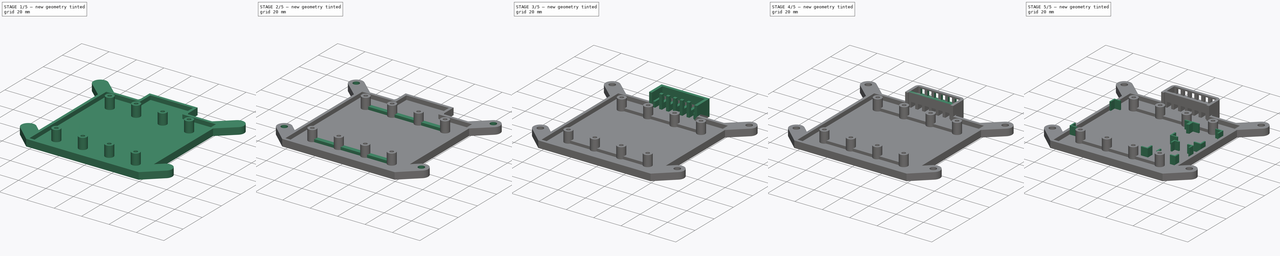
[diagram: build sequence overview — one tinted view per stage of 5, left to right]
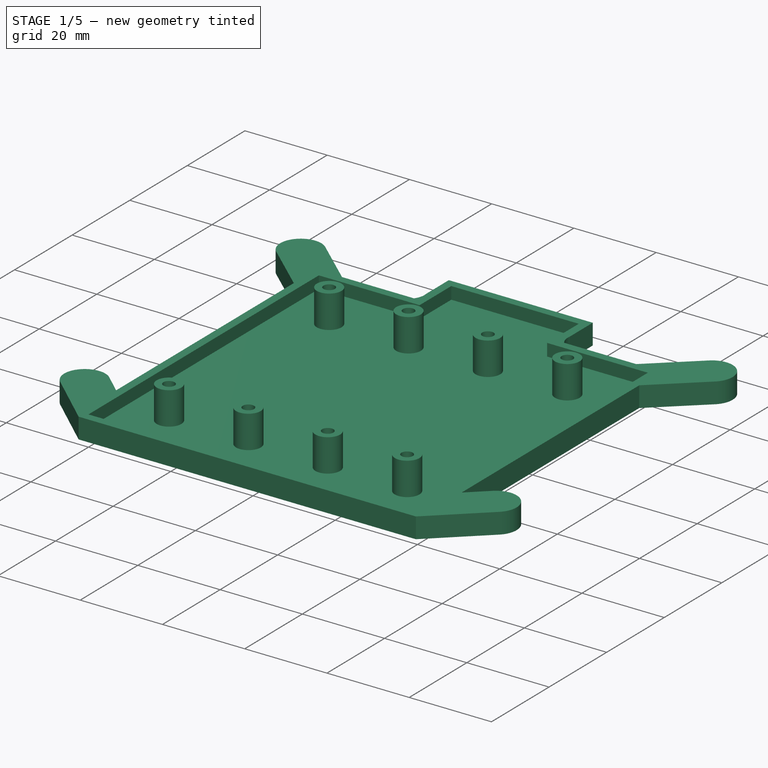
[diagram: stage 1 of 5 — iso view after this stage's code; geometry added in this stage tinted green]
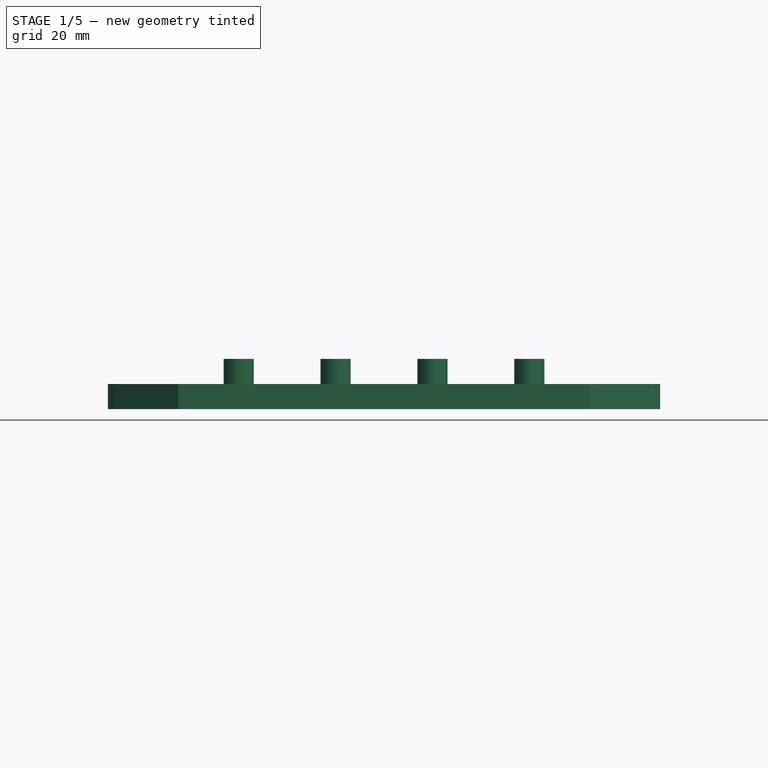
[diagram: stage 1 of 5 — front view after this stage's code; geometry added in this stage tinted green]
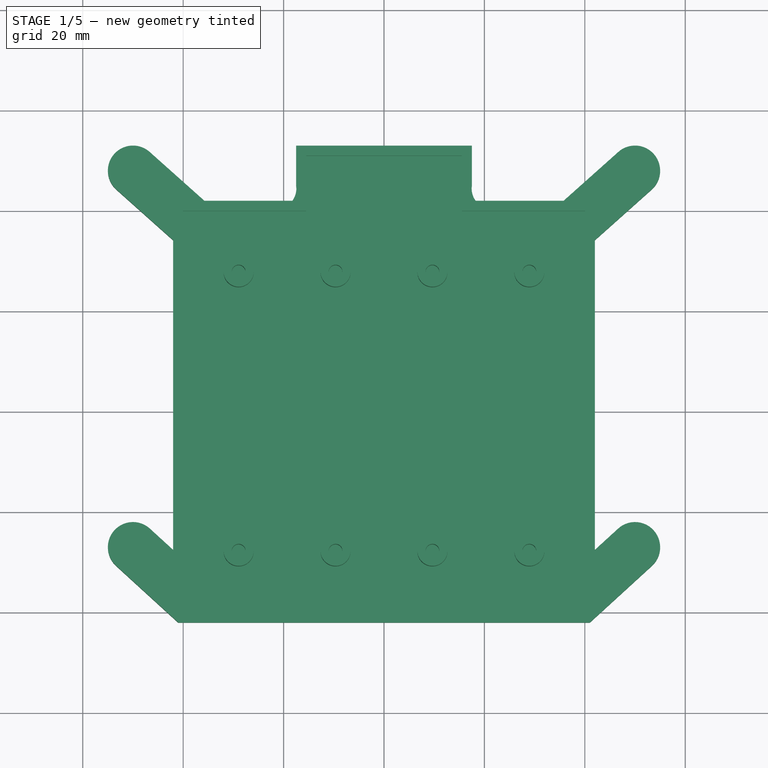
[diagram: stage 1 of 5 — top view after this stage's code; geometry added in this stage tinted green]
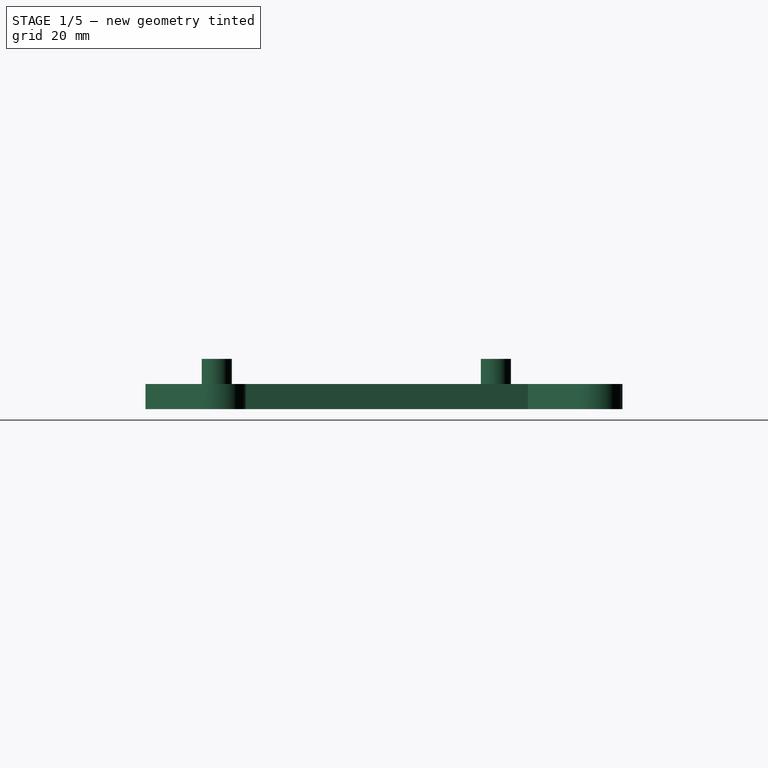
[diagram: stage 1 of 5 — right view after this stage's code; geometry added in this stage tinted green]
FCSTD DOCUMENT  (FreeCAD 1.1R44227 +322 (Git))
Label: foundation_v2
License: All rights reserved
LicenseURL: https://en.wikipedia.org/wiki/All_rights_reserved
objects: Sketcher::SketchObject×14, PartDesign::Pad×11, PartDesign::Pocket×3, PartDesign::Fillet×1, PartDesign::Body×1, App::Point×1
note: 74 computed .brp shape members not serialized (recipe doc carries the construction recipe); baked Part::Feature solids carry a one-line shape summary decoded from their .brp

FEATURE [Sketcher::SketchObject] Sketch111
  ArcFitTolerance = 0
  AttachmentSupport = -> [XY_Plane013]
  ExternalTypes = [0]
  FullyConstrained = true
  MakeInternals = false
  MapMode = 5
  sketch-geometry (36):
    g0: LineSegment [constr] StartX=-40 StartY=40 StartZ=0 EndX=40 EndY=40 EndZ=0
    g1: LineSegment StartX=-40 StartY=40 StartZ=0 EndX=-40 EndY=-40 EndZ=0
    g2: LineSegment StartX=-40 StartY=-40 StartZ=0 EndX=40 EndY=-40 EndZ=0
    g3: LineSegment StartX=40 StartY=40 StartZ=0 EndX=40 EndY=-40 EndZ=0
    g4: LineSegment [constr] StartX=-35.7645 StartY=42 StartZ=0 EndX=35.7645 EndY=42 EndZ=0
    g5: LineSegment StartX=42 StartY=34.1618 StartZ=0 EndX=42 EndY=-27.5382 EndZ=0
    g6: LineSegment StartX=41 StartY=-42 StartZ=0 EndX=-41 EndY=-42 EndZ=0
    g7: LineSegment StartX=-42 StartY=-27.5382 StartZ=0 EndX=-42 EndY=34.1618 EndZ=0
    g8: GeomPoint [constr] X=50 Y=48 Z=0
    g9: GeomPoint [constr] X=-50 Y=48 Z=0
    g10: GeomPoint [constr] X=-50 Y=-27 Z=0
    g11: GeomPoint [constr] X=50 Y=-27 Z=0
    g12: ArcOfCircle CenterX=50 CenterY=48 CenterZ=0 NormalX=0 NormalY=0 NormalZ=1 AngleXU=0 Radius=5 StartAngle=5.44087 EndAngle=8.58246
    g13: ArcOfCircle CenterX=-50 CenterY=48 CenterZ=0 NormalX=0 NormalY=0 NormalZ=1 AngleXU=0 Radius=5 StartAngle=0.842315 EndAngle=3.98391
    g14: ArcOfCircle CenterX=-50 CenterY=-27 CenterZ=0 NormalX=0 NormalY=0 NormalZ=1 AngleXU=0 Radius=5 StartAngle=0.830293 EndAngle=3.97189
    g15: ArcOfCircle CenterX=50 CenterY=-27 CenterZ=0 NormalX=0 NormalY=0 NormalZ=1 AngleXU=0 Radius=5 StartAngle=5.45289 EndAngle=8.59448
    g16: LineSegment StartX=-53.3733 StartY=-30.6906 StartZ=0 EndX=-41 EndY=-42 EndZ=0
    g17: LineSegment StartX=41 StartY=-42 StartZ=0 EndX=53.3733 EndY=-30.6906 EndZ=0
    g18: LineSegment StartX=46.6713 StartY=51.7309 StartZ=0 EndX=35.7645 EndY=42 EndZ=0
    g19: LineSegment StartX=-35.7645 StartY=42 StartZ=0 EndX=-46.6713 EndY=51.7309 EndZ=0
    g20: LineSegment StartX=42 StartY=34.1618 StartZ=0 EndX=53.3287 EndY=44.2691 EndZ=0
    g21: LineSegment StartX=-42 StartY=34.1618 StartZ=0 EndX=-53.3287 EndY=44.2691 EndZ=0
    g22: LineSegment StartX=-46.6267 StartY=-23.3094 StartZ=0 EndX=-42 EndY=-27.5382 EndZ=0
    g23: LineSegment StartX=46.6267 StartY=-23.3094 StartZ=0 EndX=42 EndY=-27.5382 EndZ=0
    g24: LineSegment StartX=35.7645 StartY=42 StartZ=0 EndX=18.2645 EndY=42 EndZ=0
    g25: LineSegment StartX=17.5 StartY=53 StartZ=0 EndX=17.5 EndY=45 EndZ=0
    g26: ArcOfCircle CenterX=21.5 CenterY=44.4219 CenterZ=0 NormalX=0 NormalY=0 NormalZ=1 AngleXU=0 Radius=4.04156 StartAngle=2.99806 EndAngle=3.78415
    g27: LineSegment StartX=40 StartY=40 StartZ=0 EndX=15.5 EndY=40 EndZ=0
    g28: LineSegment StartX=15.5 StartY=40 StartZ=0 EndX=15.5 EndY=51 EndZ=0
    g29: LineSegment StartX=15.5 StartY=51 StartZ=0 EndX=-15.5 EndY=51 EndZ=0
    g30: LineSegment StartX=17.5 StartY=53 StartZ=0 EndX=-17.5 EndY=53 EndZ=0
    g31: LineSegment StartX=-40 StartY=40 StartZ=0 EndX=-15.5 EndY=40 EndZ=0
    g32: LineSegment StartX=-15.5 StartY=40 StartZ=0 EndX=-15.5 EndY=51 EndZ=0
    g33: LineSegment StartX=-17.5 StartY=53 StartZ=0 EndX=-17.5 EndY=45 EndZ=0
    g34: LineSegment StartX=-35.7645 StartY=42 StartZ=0 EndX=-18.2645 EndY=42 EndZ=0
    g35: ArcOfCircle CenterX=-21.5 CenterY=44.4219 CenterZ=0 NormalX=0 NormalY=0 NormalZ=1 AngleXU=0 Radius=4.04156 StartAngle=5.64063 EndAngle=6.42672
  constraints (93):
    c: Horizontal(g0)
    c: DistanceX(g0,g0) = 80
    c: Coincident(g1,g0)
    c: Vertical(g1)
    c: DistanceY(g1,g1) = 80
    c: Distance(g-1,g0) = 40
    c: Distance(g-1,g1) = 40
    c: Coincident(g2,g1)
    c: Horizontal(g2)
    c: Coincident(g3,g0)
    c: Coincident(g3,g2)
    c: Vertical(g3)
    c: Horizontal(g4)
    c: Vertical(g5)
    c: Vertical(g7)
    c: DistanceY(g6,g4) = 84
    c: Distance(g4,g0) = 2
    c: DistanceX(g-2,g11) = 50
    c: DistanceY(g-1,g10) = -27
    c: DistanceX(g-2,g10) = -50
    c: DistanceY(g-1,g9) = 48
    c: DistanceX(g-2,g9) = -50
    c: DistanceY(g-1,g8) = 48
    c: DistanceX(g-2,g8) = 50
    c: Coincident(g12,g8)
    c: Diameter(g12) = 10
    c: DistanceY(g-1,g11) = -27
    c: Coincident(g13,g9)
    c: Coincident(g14,g10)
    c: Coincident(g15,g11)
    c: Equal(g12,g13)
    c: Equal(g13,g14)
    c: Equal(g14,g15)
    c: Coincident(g16,g6)
    c: Coincident(g17,g6)
    c: Coincident(g18,g4)
    c: Coincident(g19,g4)
    c: Parallel(g18,g20)
    c: Parallel(g21,g19)
    c: Parallel(g22,g16)
    c: Parallel(g23,g17)
    c: Coincident(g7,g21)
    c: Coincident(g5,g20)
    c: Coincident(g5,g23)
    c: Coincident(g7,g22)
    c: Distance(g-1,g5) = 42
    c: DistanceY(g5,g5) = 61.7
    c: Distance(g-1,g7) = 42
    c: Tangent(g13,g21) = 1.5708
    c: Tangent(g13,g19) = -1.5708
    c: Tangent(g12,g18) = -1.5708
    c: Tangent(g12,g20) = -1.5708
    c: Tangent(g15,g23) = -1.5708
    c: Tangent(g15,g17) = -1.5708
    c: Tangent(g14,g16) = -1.5708
    c: Tangent(g14,g22) = 1.5708
    c: Coincident(g24,g4)
    c: PointOnObject(g24,g4)
    c: Vertical(g25)
    c: Coincident(g26,g24)
    c: Coincident(g26,g25)
    c: DistanceY(g25,g25) = 8
    c: Distance(g-1,g25) = 17.5
    c: Distance(g25,g4) = 11
    c: DistanceX(g24,g24) = 17.5
    c: Distance(g26,g25) = 4
    c: Coincident(g27,g0)
    c: PointOnObject(g27,g0)
    c: DistanceX(g27,g27) = 24.5
    c: Coincident(g28,g27)
    c: Vertical(g28)
    c: Coincident(g29,g28)
    c: Horizontal(g29)
    c: Coincident(g30,g25)
    c: Horizontal(g30)
    c: Coincident(g31,g0)
    c: PointOnObject(g31,g0)
    c: Coincident(g32,g31)
    c: Coincident(g32,g29)
    c: Vertical(g32)
    c: DistanceY(g32,g32) = 11
    c: DistanceX(g31,g31) = 24.5
    c: Coincident(g33,g30)
    c: Vertical(g33)
    c: Coincident(g34,g4)
    c: PointOnObject(g34,g4)
    c: Symmetric(g33,g25,g-2)
    c: Coincident(g35,g33)
    c: Coincident(g35,g34)
    c: Symmetric(g35,g26,g-2)
    c: Distance(g7,g7) = 61.7
    c: Symmetric(g6,g6,g-2)
    c: DistanceX(g6,g6) = 82
FEATURE [PartDesign::Pad] Pad042
  Direction = (0,0,1)
  Length = 5
  Length2 = 10
  Profile = -> Sketch111
  ReferenceAxis = -> Sketch111 [N_Axis]
  SideType = 0
  Suppressed = false
  Type = 0
  Type2 = 0
FEATURE [Sketcher::SketchObject] Sketch112
  ArcFitTolerance = 0
  ExternalTypes = [0]
  FullyConstrained = true
  MakeInternals = false
  MapMode = 5
  sketch-geometry (9):
    g0: LineSegment [constr] StartX=-41 StartY=41 StartZ=0 EndX=41 EndY=41 EndZ=0
    g1: LineSegment StartX=41 StartY=41 StartZ=0 EndX=41 EndY=-41 EndZ=0
    g2: LineSegment StartX=41 StartY=-41 StartZ=0 EndX=-41 EndY=-41 EndZ=0
    g3: LineSegment StartX=-41 StartY=-41 StartZ=0 EndX=-41 EndY=41 EndZ=0
    g4: LineSegment StartX=-16 StartY=53 StartZ=0 EndX=16 EndY=53 EndZ=0
    g5: LineSegment StartX=-16 StartY=53 StartZ=0 EndX=-16 EndY=41 EndZ=0
    g6: LineSegment StartX=16 StartY=53 StartZ=0 EndX=16 EndY=41 EndZ=0
    g7: LineSegment StartX=16 StartY=41 StartZ=0 EndX=41 EndY=41 EndZ=0
    g8: LineSegment StartX=-16 StartY=41 StartZ=0 EndX=-41 EndY=41 EndZ=0
  constraints (26):
    c: Coincident(g0,g1)
    c: Coincident(g1,g2)
    c: Coincident(g2,g3)
    c: Coincident(g3,g0)
    c: Horizontal(g0)
    c: Horizontal(g2)
    c: Vertical(g1)
    c: Vertical(g3)
    c: DistanceY(g1,g1) = 82
    c: DistanceX(g0,g0) = 82
    c: Distance(g-1,g1) = 41
    c: Distance(g-1,g0) = 41
    c: Horizontal(g4)
    c: Coincident(g5,g4)
    c: PointOnObject(g5,g0)
    c: Vertical(g5)
    c: Coincident(g6,g4)
    c: PointOnObject(g6,g0)
    c: Vertical(g6)
    c: Coincident(g7,g6)
    c: Coincident(g7,g0)
    c: Coincident(g8,g5)
    c: Coincident(g8,g0)
    c: DistanceX(g4,g4) = 32
    c: Distance(g5,g5) = 12
    c: Distance(g-1,g5) = 16
FEATURE [PartDesign::Pad] Pad043
  BaseFeature = -> Pad042
  Direction = (0,0,1)
  Length = 2
  Length2 = 10
  Profile = -> Sketch112
  ReferenceAxis = -> Sketch112 [N_Axis]
  SideType = 0
  Suppressed = false
  Type = 0
  Type2 = 0
FEATURE [Sketcher::SketchObject] Sketch114
  ArcFitTolerance = 0
  AttachmentSupport = -> [XY_Plane013]
  ExternalTypes = [0]
  FullyConstrained = true
  MakeInternals = false
  MapMode = 5
  sketch-geometry (24):
    g0: LineSegment [constr] StartX=-39.55 StartY=27.805 StartZ=0 EndX=-39.55 EndY=-27.805 EndZ=0
    g1: LineSegment [constr] StartX=-39.55 StartY=27.805 StartZ=0 EndX=40.45 EndY=27.805 EndZ=0
    g2: LineSegment [constr] StartX=-39.55 StartY=-27.805 StartZ=0 EndX=40.45 EndY=-27.805 EndZ=0
    g3: LineSegment [constr] StartX=40.45 StartY=-27.805 StartZ=0 EndX=40.45 EndY=27.805 EndZ=0
    g4: LineSegment [constr] StartX=-28.95 StartY=27.805 StartZ=0 EndX=-28.95 EndY=-27.805 EndZ=0
    g5: LineSegment [constr] StartX=-9.65 StartY=27.805 StartZ=0 EndX=-9.65 EndY=-27.805 EndZ=0
    g6: LineSegment [constr] StartX=9.65 StartY=27.805 StartZ=0 EndX=9.65 EndY=-27.805 EndZ=0
    g7: LineSegment [constr] StartX=28.95 StartY=27.805 StartZ=0 EndX=28.95 EndY=-27.805 EndZ=0
    g8: Circle CenterX=-9.65 CenterY=27.805 CenterZ=0 NormalX=0 NormalY=0 NormalZ=1 AngleXU=0 Radius=1.375
    g9: Circle CenterX=9.65 CenterY=27.805 CenterZ=0 NormalX=0 NormalY=0 NormalZ=1 AngleXU=0 Radius=1.375
    g10: Circle CenterX=-9.65 CenterY=-27.805 CenterZ=0 NormalX=0 NormalY=0 NormalZ=1 AngleXU=0 Radius=1.375
    g11: Circle CenterX=9.65 CenterY=-27.805 CenterZ=0 NormalX=0 NormalY=0 NormalZ=1 AngleXU=0 Radius=1.375
    g12: Circle CenterX=-28.95 CenterY=27.805 CenterZ=0 NormalX=0 NormalY=0 NormalZ=1 AngleXU=0 Radius=1.375
    g13: Circle CenterX=28.95 CenterY=27.805 CenterZ=0 NormalX=0 NormalY=0 NormalZ=1 AngleXU=0 Radius=1.375
    g14: Circle CenterX=28.95 CenterY=-27.805 CenterZ=0 NormalX=0 NormalY=0 NormalZ=1 AngleXU=0 Radius=1.375
    g15: Circle CenterX=-28.95 CenterY=-27.805 CenterZ=0 NormalX=0 NormalY=0 NormalZ=1 AngleXU=0 Radius=1.375
    g16: Circle CenterX=-28.95 CenterY=27.805 CenterZ=0 NormalX=0 NormalY=0 NormalZ=1 AngleXU=0 Radius=3
    g17: Circle CenterX=-9.65 CenterY=27.805 CenterZ=0 NormalX=0 NormalY=0 NormalZ=1 AngleXU=0 Radius=3
    g18: Circle CenterX=9.65 CenterY=27.805 CenterZ=0 NormalX=0 NormalY=0 NormalZ=1 AngleXU=0 Radius=3
    g19: Circle CenterX=28.95 CenterY=27.805 CenterZ=0 NormalX=0 NormalY=0 NormalZ=1 AngleXU=0 Radius=3
    g20: Circle CenterX=28.95 CenterY=-27.805 CenterZ=0 NormalX=0 NormalY=0 NormalZ=1 AngleXU=0 Radius=3
    g21: Circle CenterX=9.65 CenterY=-27.805 CenterZ=0 NormalX=0 NormalY=0 NormalZ=1 AngleXU=0 Radius=3
    g22: Circle CenterX=-9.65 CenterY=-27.805 CenterZ=0 NormalX=0 NormalY=0 NormalZ=1 AngleXU=0 Radius=3
    g23: Circle CenterX=-28.95 CenterY=-27.805 CenterZ=0 NormalX=0 NormalY=0 NormalZ=1 AngleXU=0 Radius=3
  constraints (60):
    c: Vertical(g0)
    c: DistanceY(g0,g0) = 55.61
    c: Coincident(g1,g0)
    c: Horizontal(g1)
    c: Coincident(g2,g0)
    c: Horizontal(g2)
    c: Coincident(g3,g2)
    c: Coincident(g3,g1)
    c: Vertical(g3)
    c: Distance(g-1,g1) = 27.805
    c: DistanceX(g2,g2) = 80
    c: Vertical(g4)
    c: Vertical(g5)
    c: Vertical(g6)
    c: Vertical(g7)
    c: Distance(g4,g5) = 19.3
    c: Distance(g5,g6) = 19.3
    c: Distance(g6,g7) = 19.3
    c: Distance(g7,g3) = 11.5
    c: PointOnObject(g7,g2)
    c: PointOnObject(g6,g2)
    c: PointOnObject(g5,g2)
    c: PointOnObject(g4,g2)
    c: PointOnObject(g7,g1)
    c: PointOnObject(g6,g1)
    c: PointOnObject(g5,g1)
    c: PointOnObject(g4,g1)
    c: Distance(g-1,g5) = 9.65
    c: Coincident(g14,g7)
    c: Coincident(g15,g4)
    c: Diameter(g12) = 2.75
    c: Coincident(g12,g4)
    c: Equal(g12,g8)
    c: Equal(g8,g9)
    c: Equal(g9,g13)
    c: Equal(g13,g14)
    c: Equal(g14,g11)
    c: Equal(g11,g10)
    c: Equal(g10,g15)
    c: Coincident(g8,g5)
    c: Coincident(g9,g6)
    c: Coincident(g13,g7)
    c: Coincident(g11,g6)
    c: Coincident(g10,g5)
    c: Coincident(g16,g12)
    c: Coincident(g17,g8)
    c: Coincident(g18,g9)
    c: Coincident(g19,g13)
    c: Coincident(g20,g14)
    c: Coincident(g21,g11)
    c: Coincident(g22,g10)
    c: Coincident(g23,g15)
    c: Diameter(g16) = 6
    c: Equal(g16,g17)
    c: Equal(g17,g18)
    c: Equal(g18,g19)
    c: Equal(g19,g20)
    c: Equal(g20,g21)
    c: Equal(g21,g22)
    c: Equal(g22,g23)
FEATURE [PartDesign::Pad] Pad045
  BaseFeature = -> Pad043
  Direction = (0,0,1)
  Length = 10
  Length2 = 10
  Profile = -> Sketch114
  ReferenceAxis = -> Sketch114 [N_Axis]
  SideType = 0
  Suppressed = false
  Type = 0
  Type2 = 0
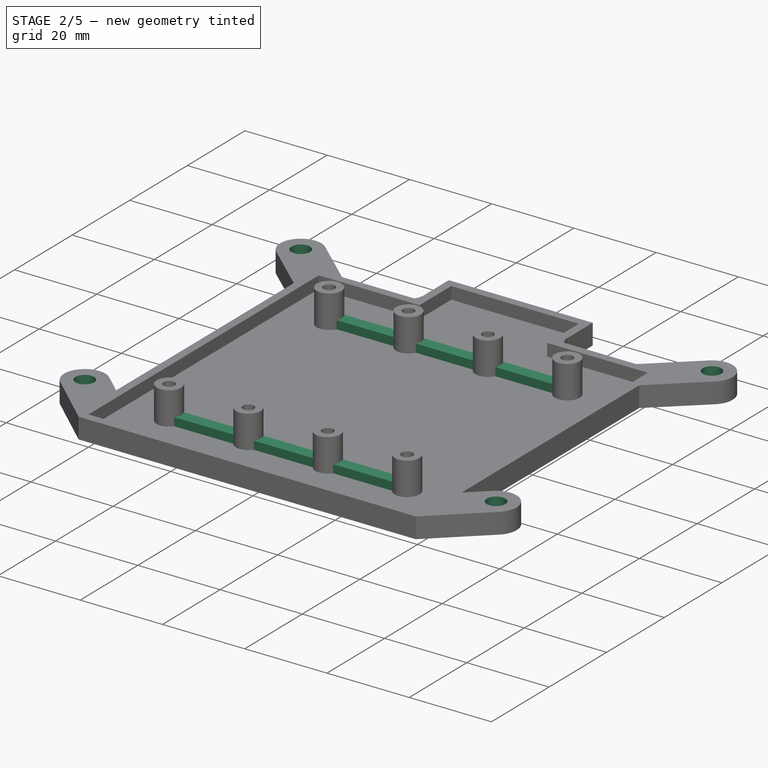
[diagram: stage 2 of 5 — iso view after this stage's code; geometry added in this stage tinted green]
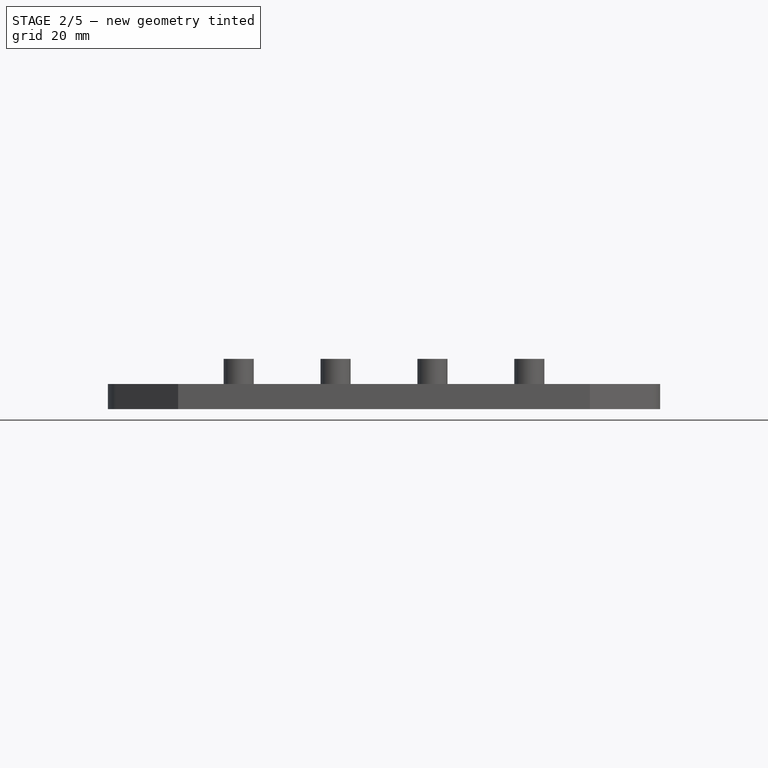
[diagram: stage 2 of 5 — front view after this stage's code; geometry added in this stage tinted green]
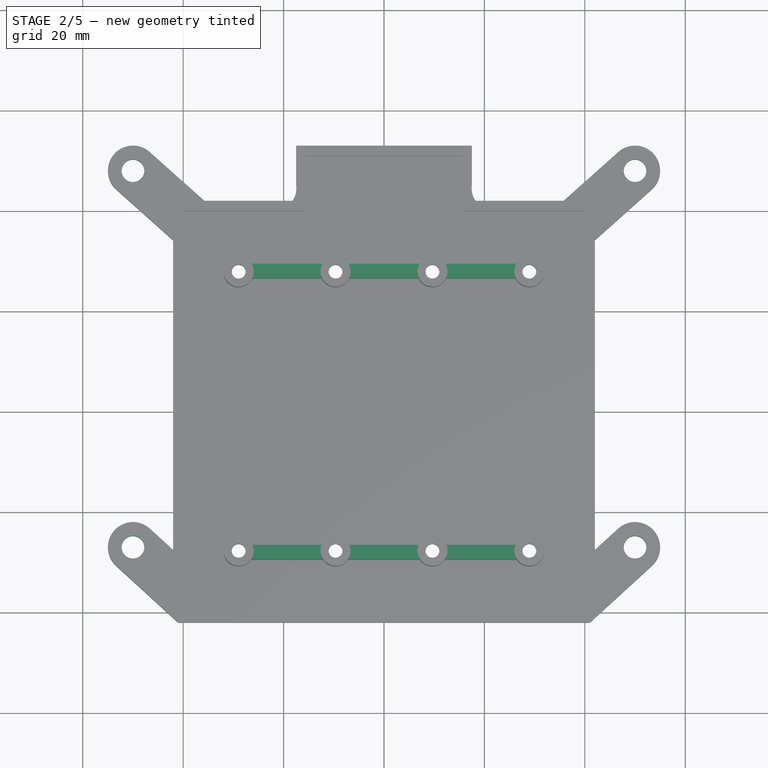
[diagram: stage 2 of 5 — top view after this stage's code; geometry added in this stage tinted green]
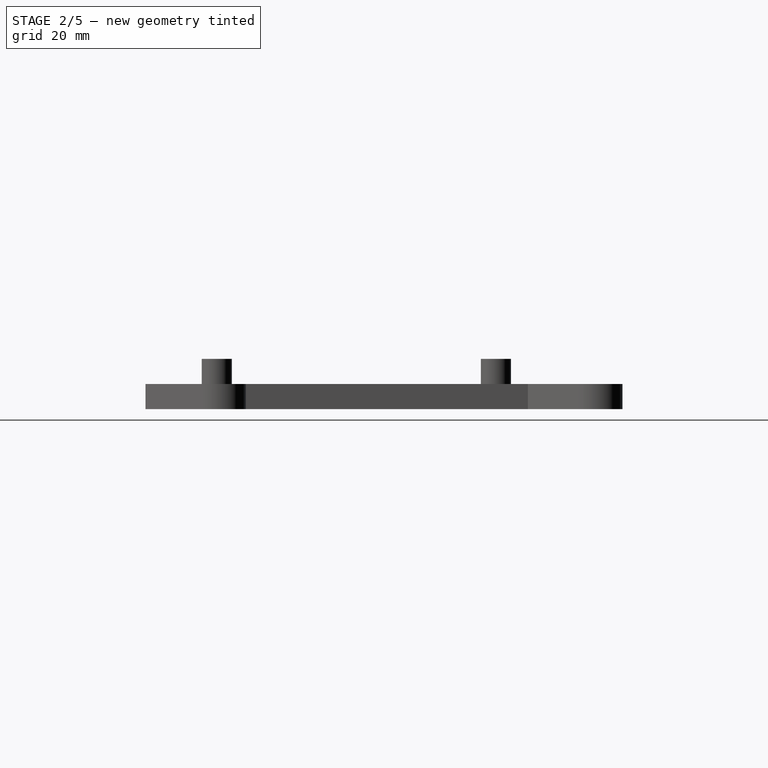
[diagram: stage 2 of 5 — right view after this stage's code; geometry added in this stage tinted green]
FEATURE [Sketcher::SketchObject] Sketch215
  ArcFitTolerance = 0
  AttachmentSupport = -> [XY_Plane013]
  ExternalTypes = [0]
  FullyConstrained = true
  MakeInternals = false
  MapMode = 5
  sketch-geometry (32):
    g0: LineSegment [constr] StartX=-38.5 StartY=28 StartZ=0 EndX=-38.5 EndY=-28 EndZ=0
    g1: LineSegment [constr] StartX=-38.5 StartY=28 StartZ=0 EndX=41.5 EndY=28 EndZ=0
    g2: LineSegment [constr] StartX=-38.5 StartY=-28 StartZ=0 EndX=41.5 EndY=-28 EndZ=0
    g3: LineSegment [constr] StartX=41.5 StartY=-28 StartZ=0 EndX=41.5 EndY=28 EndZ=0
    g4: LineSegment [constr] StartX=-30 StartY=28 StartZ=0 EndX=-30 EndY=-28 EndZ=0
    g5: LineSegment [constr] StartX=-10 StartY=28 StartZ=0 EndX=-10 EndY=-28 EndZ=0
    g6: LineSegment [constr] StartX=10 StartY=28 StartZ=0 EndX=10 EndY=-28 EndZ=0
    g7: LineSegment [constr] StartX=30 StartY=28 StartZ=0 EndX=30 EndY=-28 EndZ=0
    g8: LineSegment StartX=-28 StartY=29.5 StartZ=0 EndX=-12 EndY=29.5 EndZ=0
    g9: LineSegment StartX=28 StartY=26.5 StartZ=0 EndX=12 EndY=26.5 EndZ=0
    g10: LineSegment StartX=-28 StartY=-26.5 StartZ=0 EndX=-12 EndY=-26.5 EndZ=0
    g11: LineSegment StartX=28 StartY=-29.5 StartZ=0 EndX=12 EndY=-29.5 EndZ=0
    g12: LineSegment StartX=28 StartY=-26.5 StartZ=0 EndX=28 EndY=-29.5 EndZ=0
    g13: LineSegment StartX=-8 StartY=29.5 StartZ=0 EndX=8 EndY=29.5 EndZ=0
    g14: LineSegment StartX=-12 StartY=26.5 StartZ=0 EndX=-28 EndY=26.5 EndZ=0
    g15: LineSegment StartX=12 StartY=29.5 StartZ=0 EndX=28 EndY=29.5 EndZ=0
    g16: LineSegment StartX=8 StartY=26.5 StartZ=0 EndX=-8 EndY=26.5 EndZ=0
    g17: LineSegment StartX=-8 StartY=-26.5 StartZ=0 EndX=8 EndY=-26.5 EndZ=0
    g18: LineSegment StartX=-12 StartY=-29.5 StartZ=0 EndX=-28 EndY=-29.5 EndZ=0
    g19: LineSegment StartX=12 StartY=-26.5 StartZ=0 EndX=28 EndY=-26.5 EndZ=0
    g20: LineSegment StartX=8 StartY=-29.5 StartZ=0 EndX=-8 EndY=-29.5 EndZ=0
    g21: LineSegment StartX=-28 StartY=29.5 StartZ=0 EndX=-28 EndY=26.5 EndZ=0
    g22: LineSegment StartX=-12 StartY=26.5 StartZ=0 EndX=-12 EndY=29.5 EndZ=0
    g23: LineSegment StartX=-8 StartY=29.5 StartZ=0 EndX=-8 EndY=26.5 EndZ=0
    g24: LineSegment StartX=8 StartY=29.5 StartZ=0 EndX=8 EndY=26.5 EndZ=0
    g25: LineSegment StartX=12 StartY=29.5 StartZ=0 EndX=12 EndY=26.5 EndZ=0
    g26: LineSegment StartX=28 StartY=29.5 StartZ=0 EndX=28 EndY=26.5 EndZ=0
    g27: LineSegment StartX=-28 StartY=-26.5 StartZ=0 EndX=-28 EndY=-29.5 EndZ=0
    g28: LineSegment StartX=-12 StartY=-26.5 StartZ=0 EndX=-12 EndY=-29.5 EndZ=0
    g29: LineSegment StartX=-8 StartY=-26.5 StartZ=0 EndX=-8 EndY=-29.5 EndZ=0
    g30: LineSegment StartX=8 StartY=-29.5 StartZ=0 EndX=8 EndY=-26.5 EndZ=0
    g31: LineSegment StartX=12 StartY=-26.5 StartZ=0 EndX=12 EndY=-29.5 EndZ=0
  constraints (100):
    c: Vertical(g0)
    c: DistanceY(g0,g0) = 56
    c: Coincident(g1,g0)
    c: Horizontal(g1)
    c: Coincident(g2,g0)
    c: Horizontal(g2)
    c: Coincident(g3,g2)
    c: Coincident(g3,g1)
    c: Vertical(g3)
    c: Distance(g-1,g1) = 28
    c: DistanceX(g2,g2) = 80
    c: Vertical(g4)
    c: Vertical(g5)
    c: Vertical(g6)
    c: Vertical(g7)
    c: Distance(g4,g5) = 20
    c: Distance(g5,g6) = 20
    c: Distance(g6,g7) = 20
    c: Distance(g7,g3) = 11.5
    c: PointOnObject(g7,g2)
    c: PointOnObject(g6,g2)
    c: PointOnObject(g5,g2)
    c: PointOnObject(g4,g2)
    c: PointOnObject(g7,g1)
    c: PointOnObject(g6,g1)
    c: PointOnObject(g5,g1)
    c: PointOnObject(g4,g1)
    c: Horizontal(g8)
    c: Horizontal(g9)
    c: Horizontal(g10)
    c: Horizontal(g11)
    c: Coincident(g12,g19)
    c: Coincident(g12,g11)
    c: Vertical(g12)
    c: Horizontal(g19)
    c: Horizontal(g17)
    c: Horizontal(g20)
    c: Horizontal(g18)
    c: Horizontal(g14)
    c: Horizontal(g13)
    c: Horizontal(g16)
    c: Horizontal(g15)
    c: Distance(g-1,g5) = 10
    c: Distance(g5,g16) = 1.5
    c: Distance(g5,g13) = 1.5
    c: Distance(g6,g9) = 1.5
    c: Distance(g6,g15) = 1.5
    c: Distance(g4,g14) = 1.5
    c: Distance(g4,g8) = 1.5
    c: Vertical(g21)
    c: Coincident(g14,g21)
    c: Coincident(g21,g8)
    c: Distance(g4,g21) = 2
    c: Vertical(g22)
    c: Coincident(g22,g14)
    c: Coincident(g22,g8)
    c: Distance(g5,g22) = 2
    c: Vertical(g23)
    c: Coincident(g16,g23)
    c: Coincident(g23,g13)
    c: Vertical(g24)
    c: Coincident(g24,g16)
    c: Coincident(g24,g13)
    c: Distance(g5,g23) = 2
    c: Distance(g6,g24) = 2
    c: Coincident(g25,g15)
    c: Coincident(g25,g9)
    c: Vertical(g25)
    c: Distance(g6,g25) = 2
    c: Vertical(g26)
    c: Coincident(g26,g9)
    c: Coincident(g26,g15)
    c: Distance(g7,g26) = 2
    c: Distance(g5,g10) = 1.5
    c: Distance(g5,g18) = 1.5
    c: Coincident(g27,g10)
    c: Coincident(g27,g18)
    c: Vertical(g27)
    c: Distance(g4,g27) = 2
    c: Coincident(g28,g10)
    c: Coincident(g28,g18)
    c: Vertical(g28)
    c: Distance(g5,g28) = 2
    c: Coincident(g29,g17)
    c: Coincident(g29,g20)
    c: Vertical(g29)
    c: Distance(g5,g29) = 2
    c: Coincident(g30,g20)
    c: Coincident(g30,g17)
    c: Vertical(g30)
    c: Distance(g6,g30) = 2
    c: Distance(g6,g20) = 1.5
    c: Distance(g6,g17) = 1.5
    c: Coincident(g31,g19)
    c: Coincident(g31,g11)
    c: Vertical(g31)
    c: Distance(g6,g31) = 2
    c: Distance(g7,g12) = 2
    c: Distance(g7,g19) = 1.5
    c: Distance(g7,g11) = 1.5
FEATURE [PartDesign::Pad] Pad095
  BaseFeature = -> Pad045
  Direction = (0,0,1)
  Length = 4
  Length2 = 10
  Profile = -> Sketch215
  ReferenceAxis = -> Sketch215 [N_Axis]
  SideType = 0
  Suppressed = false
  Type = 0
  Type2 = 0
FEATURE [Sketcher::SketchObject] Sketch216
  ArcFitTolerance = 0
  AttachmentSupport = -> [XY_Plane013]
  ExternalTypes = [0]
  FullyConstrained = true
  MakeInternals = false
  MapMode = 5
  sketch-geometry (8):
    g0: GeomPoint [constr] X=50 Y=48 Z=0
    g1: GeomPoint [constr] X=-50 Y=48 Z=0
    g2: GeomPoint [constr] X=-50 Y=-27 Z=0
    g3: GeomPoint [constr] X=50 Y=-27 Z=0
    g4: Circle CenterX=-50 CenterY=48 CenterZ=0 NormalX=0 NormalY=0 NormalZ=1 AngleXU=0 Radius=2.25
    g5: Circle CenterX=50 CenterY=48 CenterZ=0 NormalX=0 NormalY=0 NormalZ=1 AngleXU=0 Radius=2.25
    g6: Circle CenterX=50 CenterY=-27 CenterZ=0 NormalX=0 NormalY=0 NormalZ=1 AngleXU=0 Radius=2.25
    g7: Circle CenterX=-50 CenterY=-27 CenterZ=0 NormalX=0 NormalY=0 NormalZ=1 AngleXU=0 Radius=2.25
  constraints (16):
    c: DistanceX(g-2,g3) = 50
    c: DistanceY(g-1,g2) = -27
    c: DistanceX(g-2,g2) = -50
    c: DistanceY(g-1,g1) = 48
    c: DistanceX(g-2,g1) = -50
    c: DistanceY(g-1,g0) = 48
    c: DistanceX(g-2,g0) = 50
    c: DistanceY(g-1,g3) = -27
    c: Coincident(g4,g1)
    c: Coincident(g5,g0)
    c: Coincident(g6,g3)
    c: Coincident(g7,g2)
    c: Diameter(g4) = 4.5
    c: Equal(g4,g5)
    c: Equal(g5,g6)
    c: Equal(g6,g7)
FEATURE [PartDesign::Pocket] Pocket088
  BaseFeature = -> Pad095
  Direction = (0,0,-1)
  Length = 10
  Length2 = 5
  Profile = -> Sketch216
  ReferenceAxis = -> Sketch216 [N_Axis]
  Reversed = true
  SideType = 0
  Suppressed = false
  Type = 0
  Type2 = 0
FEATURE [Sketcher::SketchObject] Sketch255
  ArcFitTolerance = 0
  AttachmentSupport = -> [XY_Plane013]
  ExternalTypes = [0]
  FullyConstrained = true
  MakeInternals = false
  MapMode = 5
  sketch-geometry (16):
    g0: LineSegment [constr] StartX=-39.55 StartY=27.805 StartZ=0 EndX=-39.55 EndY=-27.805 EndZ=0
    g1: LineSegment [constr] StartX=-39.55 StartY=27.805 StartZ=0 EndX=40.45 EndY=27.805 EndZ=0
    g2: LineSegment [constr] StartX=-39.55 StartY=-27.805 StartZ=0 EndX=40.45 EndY=-27.805 EndZ=0
    g3: LineSegment [constr] StartX=40.45 StartY=-27.805 StartZ=0 EndX=40.45 EndY=27.805 EndZ=0
    g4: LineSegment [constr] StartX=-28.95 StartY=27.805 StartZ=0 EndX=-28.95 EndY=-27.805 EndZ=0
    g5: LineSegment [constr] StartX=-9.65 StartY=27.805 StartZ=0 EndX=-9.65 EndY=-27.805 EndZ=0
    g6: LineSegment [constr] StartX=9.65 StartY=27.805 StartZ=0 EndX=9.65 EndY=-27.805 EndZ=0
    g7: LineSegment [constr] StartX=28.95 StartY=27.805 StartZ=0 EndX=28.95 EndY=-27.805 EndZ=0
    g8: Circle CenterX=-9.65 CenterY=27.805 CenterZ=0 NormalX=0 NormalY=0 NormalZ=1 AngleXU=0 Radius=1.5
    g9: Circle CenterX=9.65 CenterY=27.805 CenterZ=0 NormalX=0 NormalY=0 NormalZ=1 AngleXU=0 Radius=1.5
    g10: Circle CenterX=-9.65 CenterY=-27.805 CenterZ=0 NormalX=0 NormalY=0 NormalZ=1 AngleXU=0 Radius=1.5
    g11: Circle CenterX=9.65 CenterY=-27.805 CenterZ=0 NormalX=0 NormalY=0 NormalZ=1 AngleXU=0 Radius=1.5
    g12: Circle CenterX=-28.95 CenterY=27.805 CenterZ=0 NormalX=0 NormalY=0 NormalZ=1 AngleXU=0 Radius=1.5
    g13: Circle CenterX=28.95 CenterY=27.805 CenterZ=0 NormalX=0 NormalY=0 NormalZ=1 AngleXU=0 Radius=1.5
    g14: Circle CenterX=28.95 CenterY=-27.805 CenterZ=0 NormalX=0 NormalY=0 NormalZ=1 AngleXU=0 Radius=1.5
    g15: Circle CenterX=-28.95 CenterY=-27.805 CenterZ=0 NormalX=0 NormalY=0 NormalZ=1 AngleXU=0 Radius=1.5
  constraints (44):
    c: Vertical(g0)
    c: DistanceY(g0,g0) = 55.61
    c: Coincident(g1,g0)
    c: Horizontal(g1)
    c: Coincident(g2,g0)
    c: Horizontal(g2)
    c: Coincident(g3,g2)
    c: Coincident(g3,g1)
    c: Vertical(g3)
    c: Distance(g-1,g1) = 27.805
    c: DistanceX(g2,g2) = 80
    c: Vertical(g4)
    c: Vertical(g5)
    c: Vertical(g6)
    c: Vertical(g7)
    c: Distance(g4,g5) = 19.3
    c: Distance(g5,g6) = 19.3
    c: Distance(g6,g7) = 19.3
    c: Distance(g7,g3) = 11.5
    c: PointOnObject(g7,g2)
    c: PointOnObject(g6,g2)
    c: PointOnObject(g5,g2)
    c: PointOnObject(g4,g2)
    c: PointOnObject(g7,g1)
    c: PointOnObject(g6,g1)
    c: PointOnObject(g5,g1)
    c: PointOnObject(g4,g1)
    c: Distance(g-1,g5) = 9.65
    c: Coincident(g14,g7)
    c: Coincident(g15,g4)
    c: Diameter(g12) = 3
    c: Coincident(g12,g4)
    c: Equal(g12,g8)
    c: Equal(g8,g9)
    c: Equal(g9,g13)
    c: Equal(g13,g14)
    c: Equal(g14,g11)
    c: Equal(g11,g10)
    c: Equal(g10,g15)
    c: Coincident(g8,g5)
    c: Coincident(g9,g6)
    c: Coincident(g13,g7)
    c: Coincident(g11,g6)
    c: Coincident(g10,g5)
FEATURE [PartDesign::Pocket] Pocket103
  BaseFeature = -> Pocket088
  Direction = (0,0,-1)
  Length = 10
  Length2 = 5
  Profile = -> Sketch255
  ReferenceAxis = -> Sketch255 [N_Axis]
  SideType = 2
  Suppressed = false
  Type = 0
  Type2 = 0
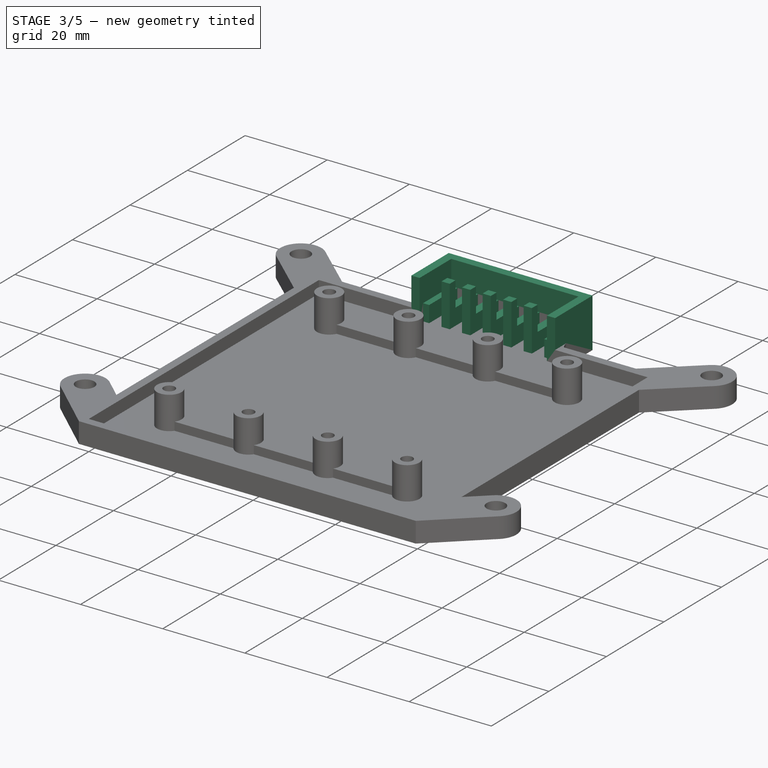
[diagram: stage 3 of 5 — iso view after this stage's code; geometry added in this stage tinted green]
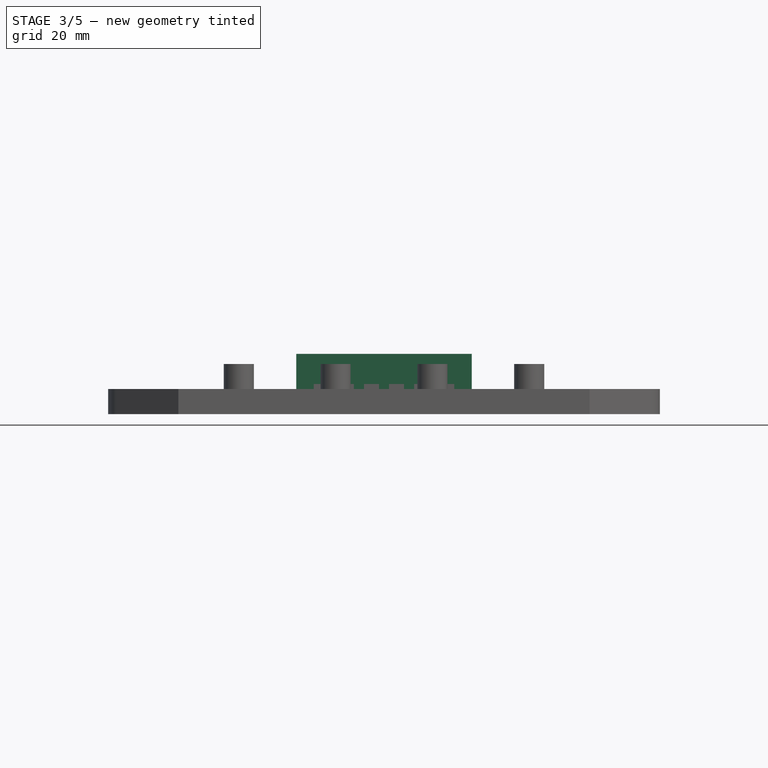
[diagram: stage 3 of 5 — front view after this stage's code; geometry added in this stage tinted green]
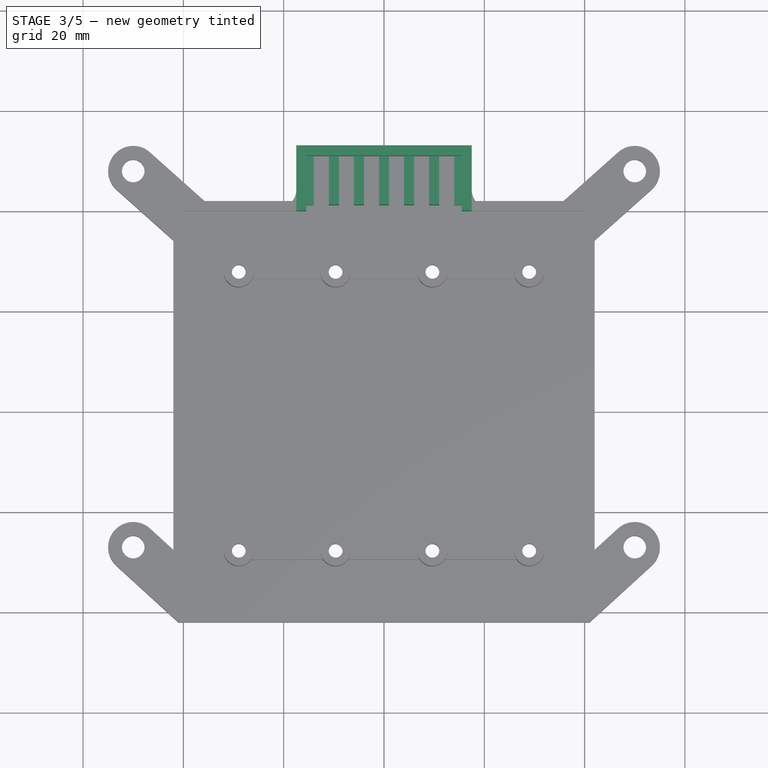
[diagram: stage 3 of 5 — top view after this stage's code; geometry added in this stage tinted green]
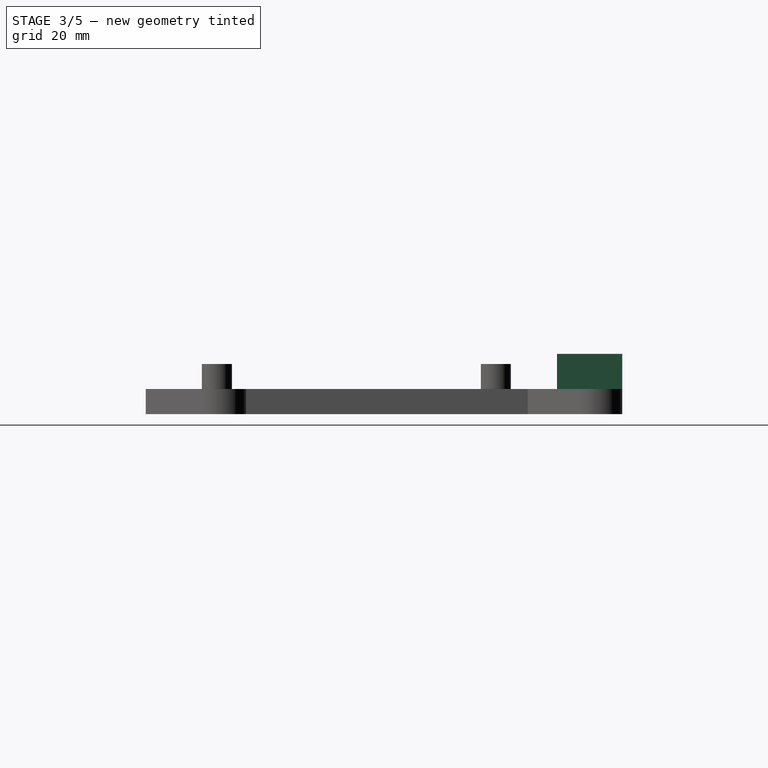
[diagram: stage 3 of 5 — right view after this stage's code; geometry added in this stage tinted green]
FEATURE [Sketcher::SketchObject] Sketch257
  ArcFitTolerance = 1e-06
  AttacherType = Attacher::AttachEngine3D
  AttachmentOffset = pos=(0,0,0) rot=(0,0,1;4.71239rad)
  AttachmentSupport = -> [XY_Plane013]
  ExternalTypes = [0]
  FullyConstrained = true
  MakeInternals = false
  MapMode = 5
  Placement = pos=(0,0,0) rot=(0,0,1;4.71239rad)
  sketch-geometry (39):
    g0: LineSegment [constr] StartX=-51.2 StartY=18 StartZ=0 EndX=-51.2 EndY=-18 EndZ=0
    g1: LineSegment [constr] StartX=-51.2 StartY=-18 StartZ=0 EndX=-41.2 EndY=-18 EndZ=0
    g2: LineSegment [constr] StartX=-41.2 StartY=-18 StartZ=0 EndX=-41.2 EndY=18 EndZ=0
    g3: LineSegment [constr] StartX=-51.2 StartY=18 StartZ=0 EndX=-41.2 EndY=18 EndZ=0
    g4: LineSegment StartX=-51.2 StartY=16 StartZ=0 EndX=-41.2 EndY=16 EndZ=0
    g5: LineSegment StartX=-51.2 StartY=14 StartZ=0 EndX=-41.2 EndY=14 EndZ=0
    g6: LineSegment StartX=-41.2 StartY=16 StartZ=0 EndX=-41.2 EndY=14 EndZ=0
    g7: LineSegment StartX=-51.2 StartY=16 StartZ=0 EndX=-51.2 EndY=14 EndZ=0
    g8: LineSegment StartX=-51.2 StartY=-16 StartZ=0 EndX=-41.2 EndY=-16 EndZ=0
    g9: LineSegment StartX=-51.2 StartY=-14 StartZ=0 EndX=-41.2 EndY=-14 EndZ=0
    g10: LineSegment StartX=-41.2 StartY=-14 StartZ=0 EndX=-41.2 EndY=-16 EndZ=0
    g11: LineSegment StartX=-51.2 StartY=-14 StartZ=0 EndX=-51.2 EndY=-16 EndZ=0
    g12: LineSegment [constr] StartX=-46.2 StartY=18 StartZ=0 EndX=-46.2 EndY=-18 EndZ=0
    g13: GeomPoint [constr] X=-46.2 Y=12.5 Z=0
    g14: GeomPoint [constr] X=-46.2 Y=7.5 Z=0
    g15: GeomPoint [constr] X=-46.2 Y=2.5 Z=0
    g16: GeomPoint [constr] X=-46.2 Y=-2.5 Z=0
    g17: GeomPoint [constr] X=-46.2 Y=-7.5 Z=0
    g18: GeomPoint [constr] X=-46.2 Y=-12.5 Z=0
    g19: LineSegment StartX=-51.2 StartY=11 StartZ=0 EndX=-41.2 EndY=11 EndZ=0
    g20: LineSegment StartX=-51.2 StartY=9 StartZ=0 EndX=-41.2 EndY=9 EndZ=0
    g21: LineSegment StartX=-51.2 StartY=11 StartZ=0 EndX=-51.2 EndY=9 EndZ=0
    g22: LineSegment StartX=-41.2 StartY=11 StartZ=0 EndX=-41.2 EndY=9 EndZ=0
    g23: LineSegment StartX=-51.2 StartY=6 StartZ=0 EndX=-41.2 EndY=6 EndZ=0
    g24: LineSegment StartX=-51.2 StartY=4 StartZ=0 EndX=-41.2 EndY=4 EndZ=0
    g25: LineSegment StartX=-41.2 StartY=6 StartZ=0 EndX=-41.2 EndY=4 EndZ=0
    g26: LineSegment StartX=-51.2 StartY=6 StartZ=0 EndX=-51.2 EndY=4 EndZ=0
    g27: LineSegment StartX=-51.2 StartY=1 StartZ=0 EndX=-41.2 EndY=1 EndZ=0
    g28: LineSegment StartX=-51.2 StartY=-1 StartZ=0 EndX=-41.2 EndY=-1 EndZ=0
    g29: LineSegment StartX=-51.2 StartY=1 StartZ=0 EndX=-51.2 EndY=-1 EndZ=0
    g30: LineSegment StartX=-41.2 StartY=1 StartZ=0 EndX=-41.2 EndY=-1 EndZ=0
    g31: LineSegment StartX=-51.2 StartY=-4 StartZ=0 EndX=-41.2 EndY=-4 EndZ=0
    g32: LineSegment StartX=-51.2 StartY=-6 StartZ=0 EndX=-41.2 EndY=-6 EndZ=0
    g33: LineSegment StartX=-51.2 StartY=-4 StartZ=0 EndX=-51.2 EndY=-6 EndZ=0
    g34: LineSegment StartX=-41.2 StartY=-4 StartZ=0 EndX=-41.2 EndY=-6 EndZ=0
    g35: LineSegment StartX=-51.2 StartY=-9 StartZ=0 EndX=-41.2 EndY=-9 EndZ=0
    g36: LineSegment StartX=-51.2 StartY=-11 StartZ=0 EndX=-41.2 EndY=-11 EndZ=0
    g37: LineSegment StartX=-51.2 StartY=-9 StartZ=0 EndX=-51.2 EndY=-11 EndZ=0
    g38: LineSegment StartX=-41.2 StartY=-9 StartZ=0 EndX=-41.2 EndY=-11 EndZ=0
  constraints (110):
    c: Vertical(g0)
    c: Coincident(g1,g0)
    c: Horizontal(g1)
    c: Coincident(g2,g1)
    c: Vertical(g2)
    c: Coincident(g3,g0)
    c: Coincident(g3,g2)
    c: Horizontal(g3)
    c: DistanceY(g0,g0) = 36
    c: DistanceX(g3,g3) = 10
    c: Distance(g0,g-1) = 18
    c: Distance(g2,g-2) = 41.2
    c: PointOnObject(g4,g0)
    c: PointOnObject(g4,g2)
    c: Horizontal(g4)
    c: PointOnObject(g5,g0)
    c: PointOnObject(g5,g2)
    c: Horizontal(g5)
    c: Coincident(g6,g4)
    c: Coincident(g6,g5)
    c: Coincident(g7,g4)
    c: Coincident(g7,g5)
    c: Distance(g6,g6) = 2
    c: Distance(g2,g4) = 2
    c: PointOnObject(g8,g0)
    c: PointOnObject(g8,g2)
    c: Horizontal(g8)
    c: PointOnObject(g9,g0)
    c: PointOnObject(g9,g2)
    c: Horizontal(g9)
    c: Coincident(g10,g9)
    c: Coincident(g10,g8)
    c: Coincident(g11,g9)
    c: Coincident(g11,g8)
    c: Distance(g8,g1) = 2
    c: Symmetric(g3,g3,g12)
    c: Symmetric(g1,g1,g12)
    c: PointOnObject(g13,g12)
    c: PointOnObject(g14,g12)
    c: PointOnObject(g15,g12)
    c: PointOnObject(g16,g12)
    c: PointOnObject(g17,g12)
    c: PointOnObject(g18,g12)
    c: DistanceY(g13,g12) = 5.5
    c: DistanceY(g14,g13) = 5
    c: DistanceY(g15,g14) = 5
    c: DistanceY(g16,g15) = 5
    c: DistanceY(g17,g16) = 5
    c: DistanceY(g18,g17) = 5
    c: PointOnObject(g19,g0)
    c: PointOnObject(g19,g2)
    c: Horizontal(g19)
    c: PointOnObject(g20,g0)
    c: PointOnObject(g20,g2)
    c: Horizontal(g20)
    c: Coincident(g21,g19)
    c: Coincident(g21,g20)
    c: Coincident(g22,g19)
    c: Coincident(g22,g20)
    c: PointOnObject(g23,g0)
    c: PointOnObject(g23,g2)
    c: Horizontal(g23)
    c: PointOnObject(g24,g0)
    c: PointOnObject(g24,g2)
    c: Horizontal(g24)
    c: Coincident(g25,g23)
    c: Coincident(g25,g24)
    c: Coincident(g26,g23)
    c: Coincident(g26,g24)
    c: PointOnObject(g27,g0)
    c: PointOnObject(g27,g2)
    c: Horizontal(g27)
    c: Coincident(g29,g27)
    c: Coincident(g29,g28)
    c: Coincident(g30,g27)
    c: Coincident(g30,g28)
    c: PointOnObject(g31,g0)
    c: PointOnObject(g31,g2)
    c: Horizontal(g31)
    c: PointOnObject(g32,g0)
    c: PointOnObject(g32,g2)
    c: Horizontal(g32)
    c: Coincident(g33,g31)
    c: Coincident(g33,g32)
    c: Coincident(g34,g31)
    c: Coincident(g34,g32)
    c: PointOnObject(g35,g0)
    c: PointOnObject(g35,g2)
    c: Horizontal(g35)
    c: PointOnObject(g36,g0)
    c: PointOnObject(g36,g2)
    c: Horizontal(g36)
    c: Coincident(g37,g35)
    c: Coincident(g37,g36)
    c: Coincident(g38,g35)
    c: Coincident(g38,g36)
    c: DistanceY(g19,g5) = 3
    c: DistanceY(g23,g20) = 3
    c: PointOnObject(g28,g0)
    c: PointOnObject(g28,g2)
    c: DistanceY(g27,g24) = 3
    c: Horizontal(g28)
    c: DistanceY(g31,g28) = 3
    c: DistanceY(g35,g32) = 3
    c: Equal(g38,g34)
    c: Equal(g34,g30)
    c: Equal(g30,g25)
    c: Equal(g25,g22)
    c: Equal(g22,g6)
    c: Equal(g10,g38)
FEATURE [Sketcher::SketchObject] Sketch258
  ArcFitTolerance = 1e-06
  AttachmentOffset = pos=(0,0,0) rot=(0,0,1;4.71239rad)
  AttachmentSupport = -> [XY_Plane013]
  ExternalTypes = [0]
  FullyConstrained = true
  MakeInternals = false
  MapMode = 5
  Placement = pos=(0,0,0) rot=(0,0,1;4.71239rad)
  sketch-geometry (32):
    g0: LineSegment [constr] StartX=-43.2 StartY=18 StartZ=0 EndX=-41.2 EndY=18 EndZ=0
    g1: LineSegment [constr] StartX=-43.2 StartY=-18 StartZ=0 EndX=-41.2 EndY=-18 EndZ=0
    g2: LineSegment [constr] StartX=-43.2 StartY=-18 StartZ=0 EndX=-43.2 EndY=18 EndZ=0
    g3: LineSegment [constr] StartX=-41.2 StartY=18 StartZ=0 EndX=-41.2 EndY=-18 EndZ=0
    g4: LineSegment [constr] StartX=-43.2 StartY=14 StartZ=0 EndX=-41.2 EndY=14 EndZ=0
    g5: LineSegment [constr] StartX=-43.2 StartY=18 StartZ=0 EndX=-41.2 EndY=18 EndZ=0
    g6: LineSegment [constr] StartX=-41.2 StartY=18 StartZ=0 EndX=-41.2 EndY=14 EndZ=0
    g7: LineSegment [constr] StartX=-43.2 StartY=18 StartZ=0 EndX=-43.2 EndY=14 EndZ=0
    g8: LineSegment StartX=-43.2 StartY=11 StartZ=0 EndX=-41.2 EndY=11 EndZ=0
    g9: LineSegment StartX=-41.2 StartY=11 StartZ=0 EndX=-41.2 EndY=9 EndZ=0
    g10: LineSegment StartX=-43.2 StartY=11 StartZ=0 EndX=-43.2 EndY=9 EndZ=0
    g11: LineSegment StartX=-43.2 StartY=9 StartZ=0 EndX=-41.2 EndY=9 EndZ=0
    g12: LineSegment StartX=-43.2 StartY=6 StartZ=0 EndX=-41.2 EndY=6 EndZ=0
    g13: LineSegment StartX=-41.2 StartY=6 StartZ=0 EndX=-41.2 EndY=4 EndZ=0
    g14: LineSegment StartX=-41.2 StartY=4 StartZ=0 EndX=-43.2 EndY=4 EndZ=0
    g15: LineSegment StartX=-43.2 StartY=4 StartZ=0 EndX=-43.2 EndY=6 EndZ=0
    g16: LineSegment StartX=-41.2 StartY=1 StartZ=0 EndX=-43.2 EndY=1 EndZ=0
    g17: LineSegment StartX=-43.2 StartY=-1 StartZ=0 EndX=-41.2 EndY=-1 EndZ=0
    g18: LineSegment StartX=-43.2 StartY=1 StartZ=0 EndX=-43.2 EndY=-1 EndZ=0
    g19: LineSegment StartX=-41.2 StartY=1 StartZ=0 EndX=-41.2 EndY=-1 EndZ=0
    g20: LineSegment StartX=-43.2 StartY=-4 StartZ=0 EndX=-41.2 EndY=-4 EndZ=0
    g21: LineSegment StartX=-43.2 StartY=-6 StartZ=0 EndX=-41.2 EndY=-6 EndZ=0
    g22: LineSegment StartX=-41.2 StartY=-4 StartZ=0 EndX=-41.2 EndY=-6 EndZ=0
    g23: LineSegment StartX=-43.2 StartY=-4 StartZ=0 EndX=-43.2 EndY=-6 EndZ=0
    g24: LineSegment StartX=-43.2 StartY=-9 StartZ=0 EndX=-41.2 EndY=-9 EndZ=0
    g25: LineSegment StartX=-43.2 StartY=-11 StartZ=0 EndX=-41.2 EndY=-11 EndZ=0
    g26: LineSegment StartX=-41.2 StartY=-9 StartZ=0 EndX=-41.2 EndY=-11 EndZ=0
    g27: LineSegment StartX=-43.2 StartY=-9 StartZ=0 EndX=-43.2 EndY=-11 EndZ=0
    g28: LineSegment [constr] StartX=-43.2 StartY=-14 StartZ=0 EndX=-41.2 EndY=-14 EndZ=0
    g29: LineSegment [constr] StartX=-41.2 StartY=-14 StartZ=0 EndX=-41.2 EndY=-18 EndZ=0
    g30: LineSegment [constr] StartX=-41.2 StartY=-18 StartZ=0 EndX=-43.2 EndY=-18 EndZ=0
    g31: LineSegment [constr] StartX=-43.2 StartY=-18 StartZ=0 EndX=-43.2 EndY=-14 EndZ=0
  constraints (93):
    c: Horizontal(g0)
    c: Horizontal(g1)
    c: Coincident(g2,g1)
    c: Coincident(g2,g0)
    c: Vertical(g2)
    c: Coincident(g3,g0)
    c: Coincident(g3,g1)
    c: Vertical(g3)
    c: DistanceX(g0,g0) = 2
    c: Distance(g0,g-2) = 41.2
    c: DistanceY(g2,g2) = 36
    c: Distance(g0,g-1) = 18
    c: PointOnObject(g4,g2)
    c: PointOnObject(g4,g3)
    c: Horizontal(g4)
    c: Coincident(g5,g0)
    c: Coincident(g5,g0)
    c: Coincident(g6,g0)
    c: Coincident(g6,g4)
    c: Coincident(g7,g0)
    c: Coincident(g7,g4)
    c: PointOnObject(g8,g2)
    c: PointOnObject(g8,g3)
    c: Horizontal(g8)
    c: Coincident(g9,g8)
    c: PointOnObject(g9,g3)
    c: Coincident(g10,g8)
    c: PointOnObject(g10,g2)
    c: Coincident(g11,g10)
    c: Coincident(g11,g9)
    c: Horizontal(g11)
    c: PointOnObject(g12,g2)
    c: PointOnObject(g12,g3)
    c: Horizontal(g12)
    c: Coincident(g13,g12)
    c: PointOnObject(g13,g3)
    c: Coincident(g14,g13)
    c: PointOnObject(g14,g2)
    c: Horizontal(g14)
    c: Coincident(g15,g14)
    c: Coincident(g15,g12)
    c: PointOnObject(g16,g3)
    c: PointOnObject(g16,g2)
    c: Horizontal(g16)
    c: PointOnObject(g17,g2)
    c: PointOnObject(g17,g3)
    c: Horizontal(g17)
    c: Coincident(g18,g16)
    c: Coincident(g18,g17)
    c: Coincident(g19,g16)
    c: Coincident(g19,g17)
    c: PointOnObject(g20,g2)
    c: PointOnObject(g20,g3)
    c: Horizontal(g20)
    c: PointOnObject(g21,g2)
    c: PointOnObject(g21,g3)
    c: Horizontal(g21)
    c: Coincident(g22,g20)
    c: Coincident(g22,g21)
    c: Coincident(g23,g20)
    c: Coincident(g23,g21)
    c: PointOnObject(g24,g2)
    c: PointOnObject(g24,g3)
    c: Horizontal(g24)
    c: PointOnObject(g25,g2)
    c: PointOnObject(g25,g3)
    c: Horizontal(g25)
    c: Coincident(g26,g24)
    c: Coincident(g26,g25)
    c: Coincident(g27,g24)
    c: Coincident(g27,g25)
    c: PointOnObject(g28,g2)
    c: PointOnObject(g28,g3)
    c: Horizontal(g28)
    c: Coincident(g29,g28)
    c: Coincident(g30,g29)
    c: PointOnObject(g30,g2)
    c: Horizontal(g30)
    c: Coincident(g31,g30)
    c: Coincident(g31,g28)
    c: Coincident(g29,g1)
    c: DistanceY(g8,g4) = 3
    c: DistanceY(g9,g9) = 2
    c: DistanceY(g6,g6) = 4
    c: DistanceY(g13,g13) = 2
    c: DistanceY(g19,g19) = 2
    c: DistanceY(g22,g22) = 2
    c: DistanceY(g26,g26) = 2
    c: DistanceY(g29,g29) = 4
    c: DistanceY(g12,g9) = 3
    c: DistanceY(g16,g13) = 3
    c: DistanceY(g20,g17) = 3
    c: DistanceY(g24,g21) = 3
FEATURE [Sketcher::SketchObject] Sketch
  ArcFitTolerance = 1e-06
  AttacherType = Attacher::AttachEngine3D
  AttachmentSupport = -> [XY_Plane013]
  ExternalTypes = [0]
  FullyConstrained = true
  MakeInternals = false
  MapMode = 5
  sketch-geometry (12):
    g0: LineSegment StartX=-17.5 StartY=53 StartZ=0 EndX=-17.5 EndY=40 EndZ=0
    g1: LineSegment StartX=-17.5 StartY=40 StartZ=0 EndX=-15.5 EndY=40 EndZ=0
    g2: LineSegment [constr] StartX=-15.5 StartY=40 StartZ=0 EndX=-15.5 EndY=53 EndZ=0
    g3: LineSegment StartX=-15.5 StartY=53 StartZ=0 EndX=-17.5 EndY=53 EndZ=0
    g4: LineSegment [constr] StartX=15.5 StartY=53 StartZ=0 EndX=15.5 EndY=40 EndZ=0
    g5: LineSegment StartX=15.5 StartY=40 StartZ=0 EndX=17.5 EndY=40 EndZ=0
    g6: LineSegment StartX=17.5 StartY=40 StartZ=0 EndX=17.5 EndY=53 EndZ=0
    g7: LineSegment StartX=17.5 StartY=53 StartZ=0 EndX=15.5 EndY=53 EndZ=0
    g8: LineSegment StartX=-15.5 StartY=53 StartZ=0 EndX=15.5 EndY=53 EndZ=0
    g9: LineSegment StartX=-15.5 StartY=40 StartZ=0 EndX=-15.5 EndY=51 EndZ=0
    g10: LineSegment StartX=-15.5 StartY=51 StartZ=0 EndX=15.5 EndY=51 EndZ=0
    g11: LineSegment StartX=15.5 StartY=51 StartZ=0 EndX=15.5 EndY=40 EndZ=0
  constraints (32):
    c: Coincident(g0,g1)
    c: Coincident(g1,g2)
    c: Coincident(g2,g3)
    c: Coincident(g3,g0)
    c: Vertical(g0)
    c: Vertical(g2)
    c: Horizontal(g1)
    c: Horizontal(g3)
    c: Distance(g3,g3) = 2
    c: Distance(g2,g-2) = 15.5
    c: DistanceY(g0,g0) = 13
    c: Distance(g0,g-1) = 40
    c: Coincident(g4,g5)
    c: Coincident(g5,g6)
    c: Coincident(g6,g7)
    c: Coincident(g7,g4)
    c: Vertical(g4)
    c: Vertical(g6)
    c: Horizontal(g5)
    c: Horizontal(g7)
    c: Symmetric(g2,g4,g-2)
    c: Symmetric(g5,g0,g-2)
    c: Coincident(g8,g2)
    c: Coincident(g8,g4)
    c: Coincident(g9,g1)
    c: PointOnObject(g9,g2)
    c: Coincident(g10,g9)
    c: PointOnObject(g10,g4)
    c: Horizontal(g10)
    c: Coincident(g11,g10)
    c: Coincident(g11,g4)
    c: DistanceY(g9,g9) = 11
FEATURE [PartDesign::Pad] Pad
  BaseFeature = -> Pocket103
  Direction = (0,0,1)
  Length = 12
  Length2 = 10
  Profile = -> Sketch
  ReferenceAxis = -> Sketch [N_Axis]
  Refine = true
  SideType = 0
  Suppressed = false
  Type = 0
  Type2 = 0
FEATURE [PartDesign::Pad] Pad096
  BaseFeature = -> Pad
  Direction = (0,0,1)
  Length = 6
  Length2 = 10
  Profile = -> Sketch257
  ReferenceAxis = -> Sketch257 [N_Axis]
  Refine = true
  SideType = 0
  Suppressed = false
  Type = 0
  Type2 = 0
FEATURE [PartDesign::Pad] Pad097
  BaseFeature = -> Pad096
  Direction = (0,0,1)
  Length = 12
  Length2 = 10
  Profile = -> Sketch258
  ReferenceAxis = -> Sketch258 [N_Axis]
  Refine = true
  SideType = 0
  Suppressed = false
  Type = 0
  Type2 = 0
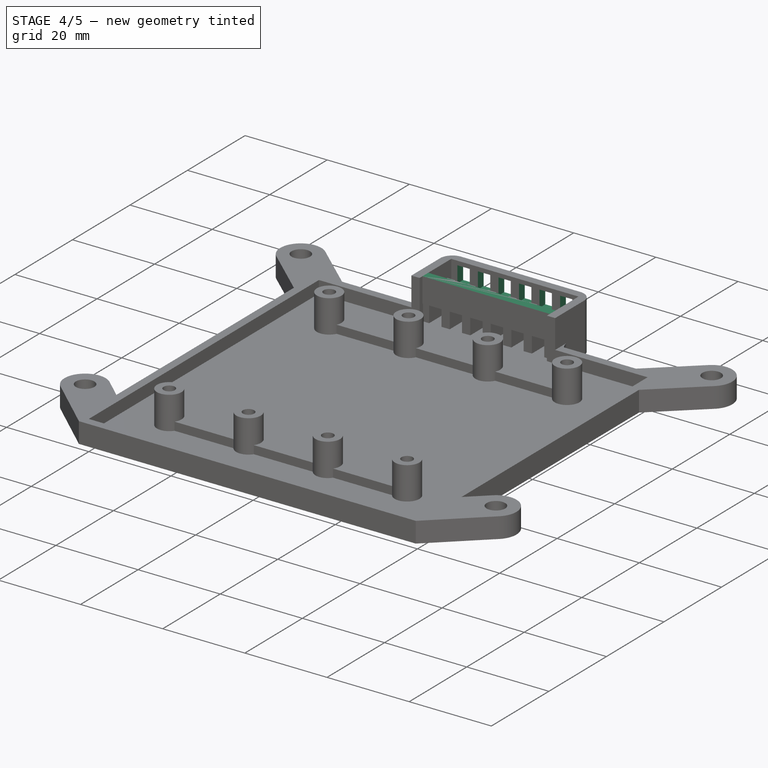
[diagram: stage 4 of 5 — iso view after this stage's code; geometry added in this stage tinted green]
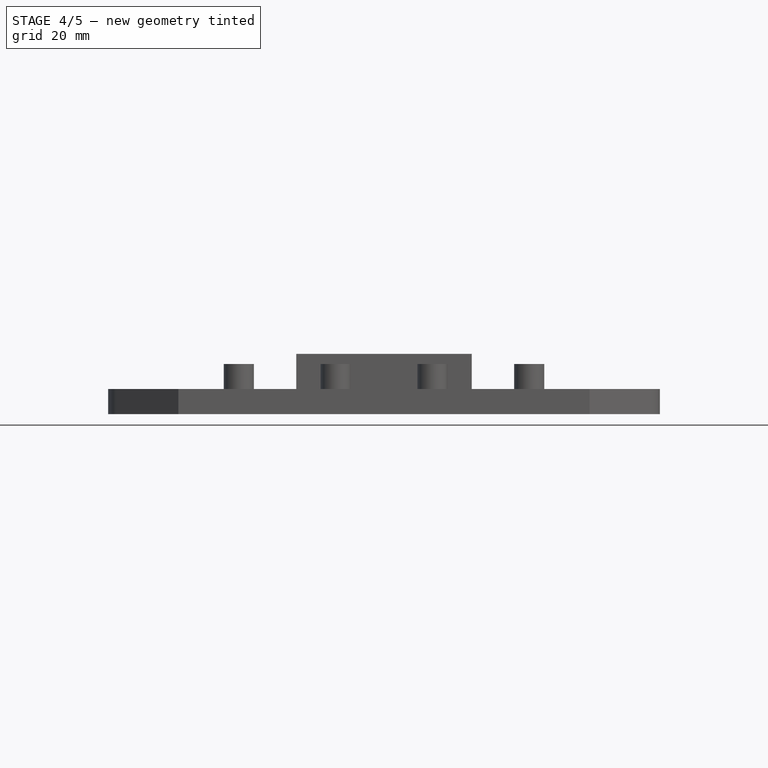
[diagram: stage 4 of 5 — front view after this stage's code; geometry added in this stage tinted green]
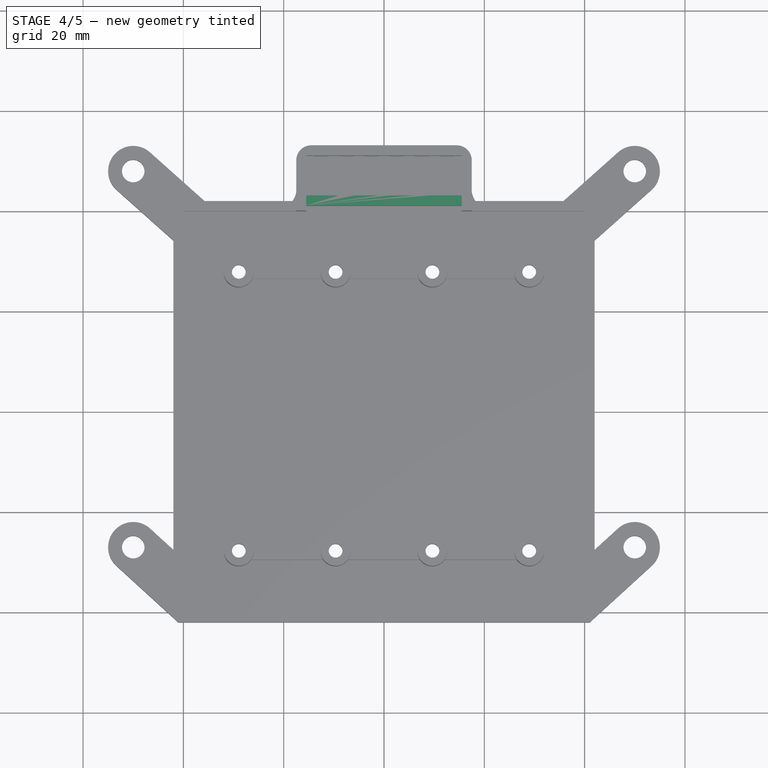
[diagram: stage 4 of 5 — top view after this stage's code; geometry added in this stage tinted green]
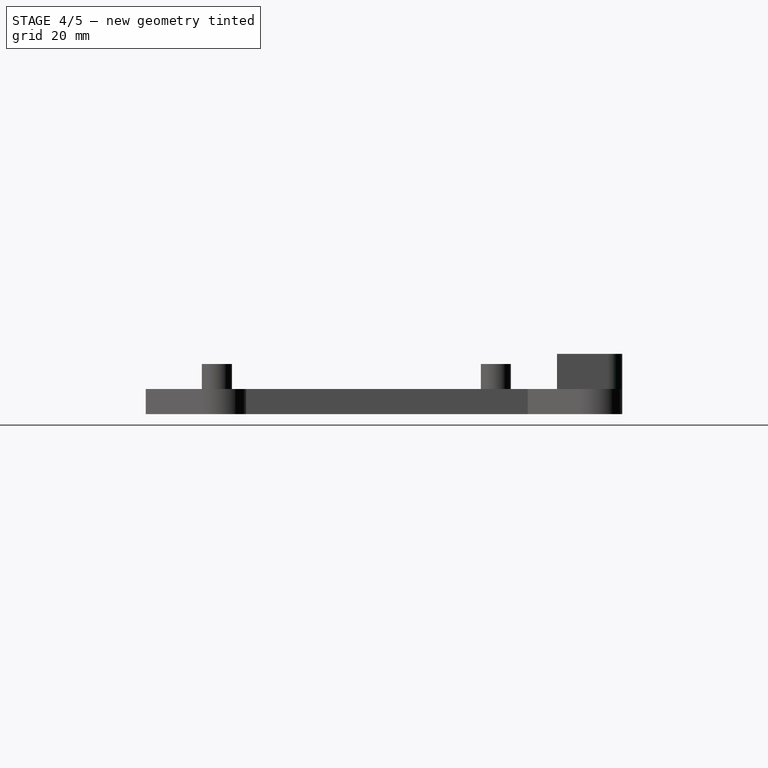
[diagram: stage 4 of 5 — right view after this stage's code; geometry added in this stage tinted green]
FEATURE [Sketcher::SketchObject] Sketch260
  ArcFitTolerance = 1e-06
  AttachmentSupport = -> [Pad097]
  ExternalTypes = [0]
  FullyConstrained = true
  MakeInternals = false
  MapMode = 5
  Placement = pos=(0,0,12) rot=(0,0,1;0rad)
  sketch-geometry (4):
    g0: LineSegment StartX=-17 StartY=43 StartZ=0 EndX=-17 EndY=41 EndZ=0
    g1: LineSegment StartX=-17 StartY=41 StartZ=0 EndX=17 EndY=41 EndZ=0
    g2: LineSegment StartX=17 StartY=41 StartZ=0 EndX=17 EndY=43 EndZ=0
    g3: LineSegment StartX=17 StartY=43 StartZ=0 EndX=-17 EndY=43 EndZ=0
  constraints (12):
    c: Coincident(g0,g1)
    c: Coincident(g1,g2)
    c: Coincident(g2,g3)
    c: Coincident(g3,g0)
    c: Vertical(g0)
    c: Vertical(g2)
    c: Horizontal(g1)
    c: Horizontal(g3)
    c: Distance(g-1,g1) = 41
    c: Distance(g2,g2) = 2
    c: DistanceX(g3,g3) = 34
    c: Distance(g0,g-2) = 17
FEATURE [PartDesign::Pad] Pad098
  BaseFeature = -> Pad097
  Direction = (0,0,1)
  Length = 6
  Length2 = 10
  Profile = -> Sketch260
  ReferenceAxis = -> Sketch260 [N_Axis]
  Refine = true
  Reversed = true
  SideType = 0
  Suppressed = false
  Type = 0
  Type2 = 0
FEATURE [PartDesign::Fillet] Fillet
  Base = -> Pad098 [Edge123,Edge125]
  BaseFeature = -> Pad098
  Radius = 3
  Refine = true
  SupportTransform = false
  Suppressed = false
  UseAllEdges = false
FEATURE [Sketcher::SketchObject] Sketch261
  ArcFitTolerance = 1e-06
  AttachmentSupport = -> [Fillet]
  ExternalTypes = [0]
  FullyConstrained = true
  MakeInternals = false
  MapMode = 5
  Placement = pos=(0,53,0) rot=(0,0.707107,0.707107;3.14159rad)
  sketch-geometry (28):
    g0: LineSegment [constr] StartX=-14 StartY=11 StartZ=0 EndX=-14 EndY=7 EndZ=0
    g1: LineSegment [constr] StartX=-14 StartY=7 StartZ=0 EndX=14 EndY=7 EndZ=0
    g2: LineSegment [constr] StartX=14 StartY=7 StartZ=0 EndX=14 EndY=11 EndZ=0
    g3: LineSegment [constr] StartX=14 StartY=11 StartZ=0 EndX=-14 EndY=11 EndZ=0
    g4: LineSegment StartX=-14 StartY=11 StartZ=0 EndX=-14 EndY=7 EndZ=0
    g5: LineSegment StartX=-14 StartY=7 StartZ=0 EndX=-11 EndY=7 EndZ=0
    g6: LineSegment StartX=-11 StartY=7 StartZ=0 EndX=-11 EndY=11 EndZ=0
    g7: LineSegment StartX=-11 StartY=11 StartZ=0 EndX=-14 EndY=11 EndZ=0
    g8: LineSegment StartX=-9 StartY=11 StartZ=0 EndX=-9 EndY=7 EndZ=0
    g9: LineSegment StartX=-9 StartY=7 StartZ=0 EndX=-6 EndY=7 EndZ=0
    g10: LineSegment StartX=-6 StartY=7 StartZ=0 EndX=-6 EndY=11 EndZ=0
    g11: LineSegment StartX=-6 StartY=11 StartZ=0 EndX=-9 EndY=11 EndZ=0
    g12: LineSegment StartX=-4 StartY=11 StartZ=0 EndX=-4 EndY=7 EndZ=0
    g13: LineSegment StartX=-4 StartY=7 StartZ=0 EndX=-1 EndY=7 EndZ=0
    g14: LineSegment StartX=-1 StartY=7 StartZ=0 EndX=-1 EndY=11 EndZ=0
    g15: LineSegment StartX=-1 StartY=11 StartZ=0 EndX=-4 EndY=11 EndZ=0
    g16: LineSegment StartX=1 StartY=11 StartZ=0 EndX=1 EndY=7 EndZ=0
    g17: LineSegment StartX=1 StartY=7 StartZ=0 EndX=4 EndY=7 EndZ=0
    g18: LineSegment StartX=4 StartY=7 StartZ=0 EndX=4 EndY=11 EndZ=0
    g19: LineSegment StartX=4 StartY=11 StartZ=0 EndX=1 EndY=11 EndZ=0
    g20: LineSegment StartX=6 StartY=11 StartZ=0 EndX=6 EndY=7 EndZ=0
    g21: LineSegment StartX=6 StartY=7 StartZ=0 EndX=9 EndY=7 EndZ=0
    g22: LineSegment StartX=9 StartY=7 StartZ=0 EndX=9 EndY=11 EndZ=0
    g23: LineSegment StartX=9 StartY=11 StartZ=0 EndX=6 EndY=11 EndZ=0
    g24: LineSegment StartX=11 StartY=11 StartZ=0 EndX=11 EndY=7 EndZ=0
    g25: LineSegment StartX=11 StartY=7 StartZ=0 EndX=14 EndY=7 EndZ=0
    g26: LineSegment StartX=14 StartY=7 StartZ=0 EndX=14 EndY=11 EndZ=0
    g27: LineSegment StartX=14 StartY=11 StartZ=0 EndX=11 EndY=11 EndZ=0
  constraints (82):
    c: Coincident(g0,g1)
    c: Coincident(g1,g2)
    c: Coincident(g2,g3)
    c: Coincident(g3,g0)
    c: Vertical(g0)
    c: Vertical(g2)
    c: Horizontal(g1)
    c: Horizontal(g3)
    c: Distance(g-1,g1) = 7
    c: Distance(g2,g2) = 4
    c: DistanceX(g3,g3) = 28
    c: Distance(g-1,g0) = 14
    c: Coincident(g4,g5)
    c: Coincident(g5,g6)
    c: Coincident(g6,g7)
    c: Coincident(g7,g4)
    c: Vertical(g4)
    c: Vertical(g6)
    c: Horizontal(g5)
    c: Horizontal(g7)
    c: Coincident(g4,g0)
    c: PointOnObject(g5,g1)
    c: Coincident(g8,g9)
    c: Coincident(g9,g10)
    c: Coincident(g10,g11)
    c: Coincident(g11,g8)
    c: Vertical(g8)
    c: Vertical(g10)
    c: Horizontal(g9)
    c: Horizontal(g11)
    c: PointOnObject(g8,g3)
    c: PointOnObject(g9,g1)
    c: Coincident(g12,g13)
    c: Coincident(g13,g14)
    c: Coincident(g14,g15)
    c: Coincident(g15,g12)
    c: Vertical(g12)
    c: Vertical(g14)
    c: Horizontal(g13)
    c: Horizontal(g15)
    c: PointOnObject(g12,g3)
    c: PointOnObject(g13,g1)
    c: Coincident(g16,g17)
    c: Coincident(g17,g18)
    c: Coincident(g18,g19)
    c: Coincident(g19,g16)
    c: Vertical(g16)
    c: Vertical(g18)
    c: Horizontal(g17)
    c: Horizontal(g19)
    c: PointOnObject(g16,g3)
    c: PointOnObject(g17,g1)
    c: Coincident(g20,g21)
    c: Coincident(g21,g22)
    c: Coincident(g22,g23)
    c: Coincident(g23,g20)
    c: Vertical(g20)
    c: Vertical(g22)
    c: Horizontal(g21)
    c: Horizontal(g23)
    c: PointOnObject(g20,g3)
    c: PointOnObject(g21,g1)
    c: Coincident(g24,g25)
    c: Coincident(g25,g26)
    c: Coincident(g26,g27)
    c: Coincident(g27,g24)
    c: Vertical(g24)
    c: Vertical(g26)
    c: Horizontal(g25)
    c: Horizontal(g27)
    c: PointOnObject(g24,g3)
    c: Coincident(g25,g1)
    c: Distance(g7,g7) = 3
    c: Equal(g7,g11)
    c: Equal(g11,g15)
    c: Equal(g15,g19)
    c: Equal(g19,g23)
    c: Equal(g23,g27)
    c: Distance(g5,g8) = 2
    c: Distance(g12,g9) = 2
    c: Distance(g16,g13) = 2
    c: DistanceX(g17,g20) = 2
FEATURE [PartDesign::Pocket] Pocket
  BaseFeature = -> Fillet
  Direction = (0,-1,2e-16)
  Length = 5
  Length2 = 5
  Profile = -> Sketch261
  ReferenceAxis = -> Sketch261 [N_Axis]
  Refine = true
  SideType = 0
  Suppressed = false
  Type = 0
  Type2 = 0
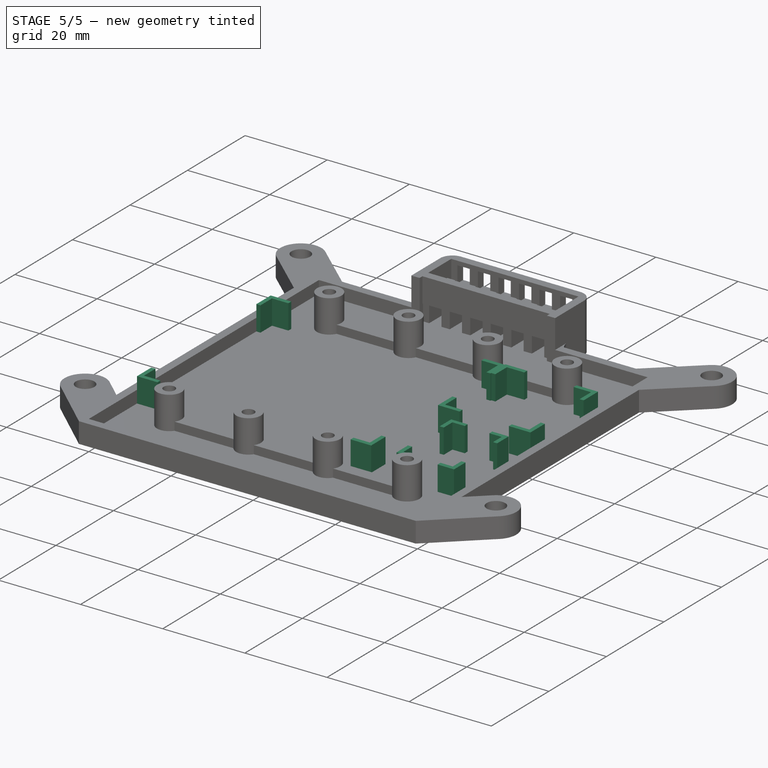
[diagram: stage 5 of 5 — iso view after this stage's code; geometry added in this stage tinted green]
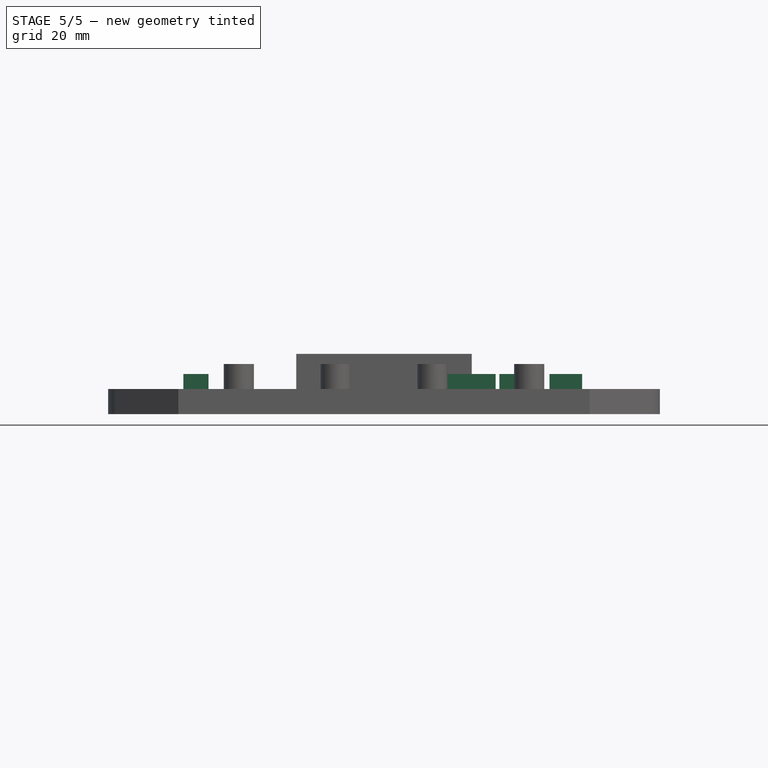
[diagram: stage 5 of 5 — front view after this stage's code; geometry added in this stage tinted green]
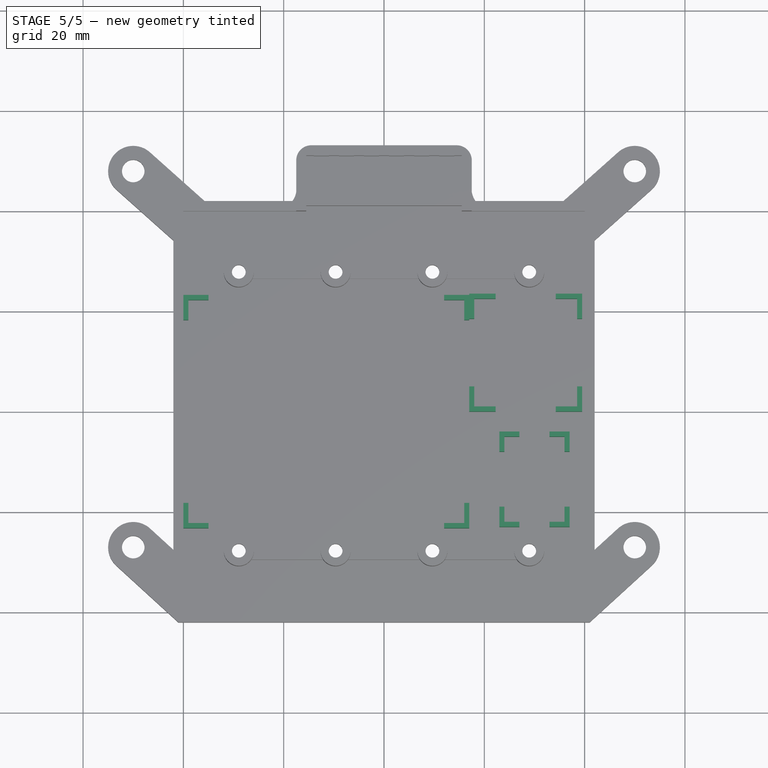
[diagram: stage 5 of 5 — top view after this stage's code; geometry added in this stage tinted green]
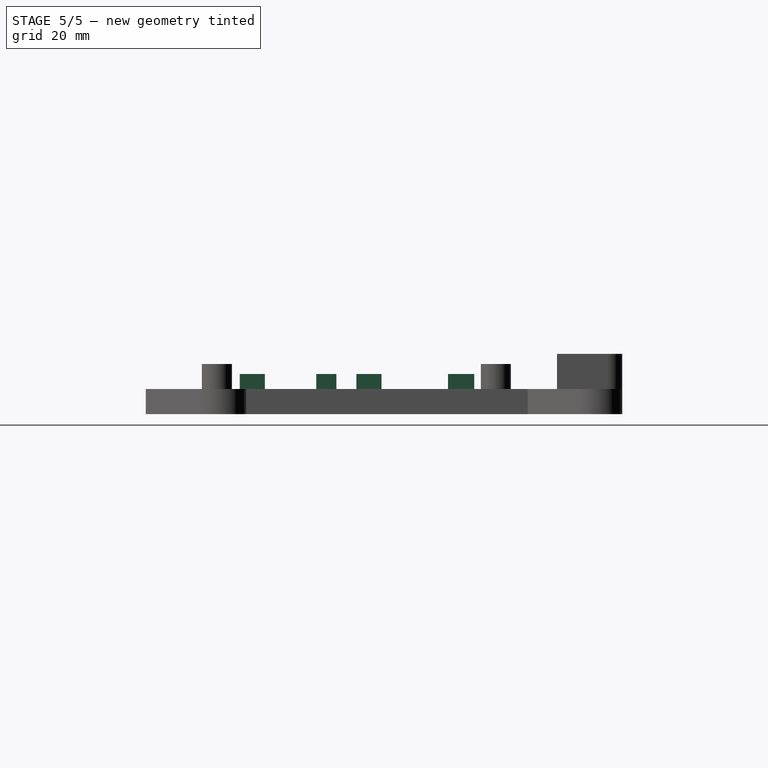
[diagram: stage 5 of 5 — right view after this stage's code; geometry added in this stage tinted green]
FEATURE [Sketcher::SketchObject] Sketch262
  ArcFitTolerance = 1e-06
  AttachmentSupport = -> [XY_Plane013]
  ExternalTypes = [0]
  FullyConstrained = true
  MakeInternals = false
  MapMode = 5
  sketch-geometry (28):
    g0: LineSegment [constr] StartX=-39 StartY=22.25 StartZ=0 EndX=-39 EndY=-22.25 EndZ=0
    g1: LineSegment [constr] StartX=-39 StartY=-22.25 StartZ=0 EndX=16 EndY=-22.25 EndZ=0
    g2: LineSegment [constr] StartX=16 StartY=-22.25 StartZ=0 EndX=16 EndY=22.25 EndZ=0
    g3: LineSegment [constr] StartX=16 StartY=22.25 StartZ=0 EndX=-39 EndY=22.25 EndZ=0
    g4: LineSegment StartX=-39 StartY=-22.25 StartZ=0 EndX=-35 EndY=-22.25 EndZ=0
    g5: LineSegment StartX=-39 StartY=-22.25 StartZ=0 EndX=-39 EndY=-18.25 EndZ=0
    g6: LineSegment StartX=-35 StartY=-22.25 StartZ=0 EndX=-35 EndY=-23.25 EndZ=0
    g7: LineSegment StartX=-35 StartY=-23.25 StartZ=0 EndX=-40 EndY=-23.25 EndZ=0
    g8: LineSegment StartX=-40 StartY=-23.25 StartZ=0 EndX=-40 EndY=-18.25 EndZ=0
    g9: LineSegment StartX=-40 StartY=-18.25 StartZ=0 EndX=-39 EndY=-18.25 EndZ=0
    g10: LineSegment StartX=-39 StartY=22.25 StartZ=0 EndX=-35 EndY=22.25 EndZ=0
    g11: LineSegment StartX=-39 StartY=22.25 StartZ=0 EndX=-39 EndY=18.25 EndZ=0
    g12: LineSegment StartX=-35 StartY=22.25 StartZ=0 EndX=-35 EndY=23.25 EndZ=0
    g13: LineSegment StartX=-35 StartY=23.25 StartZ=0 EndX=-40 EndY=23.25 EndZ=0
    g14: LineSegment StartX=-40 StartY=23.25 StartZ=0 EndX=-40 EndY=18.25 EndZ=0
    g15: LineSegment StartX=-40 StartY=18.25 StartZ=0 EndX=-39 EndY=18.25 EndZ=0
    g16: LineSegment StartX=16 StartY=-22.25 StartZ=0 EndX=12 EndY=-22.25 EndZ=0
    g17: LineSegment StartX=16 StartY=-22.25 StartZ=0 EndX=16 EndY=-18.25 EndZ=0
    g18: LineSegment StartX=12 StartY=-22.25 StartZ=0 EndX=12 EndY=-23.25 EndZ=0
    g19: LineSegment StartX=12 StartY=-23.25 StartZ=0 EndX=17 EndY=-23.25 EndZ=0
    g20: LineSegment StartX=17 StartY=-23.25 StartZ=0 EndX=17 EndY=-18.25 EndZ=0
    g21: LineSegment StartX=16 StartY=-18.25 StartZ=0 EndX=17 EndY=-18.25 EndZ=0
    g22: LineSegment StartX=16 StartY=22.25 StartZ=0 EndX=12 EndY=22.25 EndZ=0
    g23: LineSegment StartX=16 StartY=22.25 StartZ=0 EndX=16 EndY=18.25 EndZ=0
    g24: LineSegment StartX=16 StartY=18.25 StartZ=0 EndX=17 EndY=18.25 EndZ=0
    g25: LineSegment StartX=17 StartY=18.25 StartZ=0 EndX=17 EndY=23.25 EndZ=0
    g26: LineSegment StartX=17 StartY=23.25 StartZ=0 EndX=12 EndY=23.25 EndZ=0
    g27: LineSegment StartX=12 StartY=23.25 StartZ=0 EndX=12 EndY=22.25 EndZ=0
  constraints (73):
    c: Coincident(g0,g1)
    c: Coincident(g1,g2)
    c: Coincident(g2,g3)
    c: Coincident(g3,g0)
    c: Vertical(g2)
    c: Horizontal(g1)
    c: Horizontal(g3)
    c: Symmetric(g0,g0,g-1)
    c: DistanceY(g0,g0) = 44.5
    c: DistanceX(g1,g1) = 55
    c: Distance(g-1,g0) = 39
    c: Coincident(g4,g0)
    c: PointOnObject(g4,g1)
    c: Coincident(g5,g0)
    c: PointOnObject(g5,g0)
    c: Coincident(g6,g4)
    c: Vertical(g6)
    c: Coincident(g7,g6)
    c: Horizontal(g7)
    c: Coincident(g8,g7)
    c: Vertical(g8)
    c: Coincident(g9,g8)
    c: Coincident(g9,g5)
    c: Horizontal(g9)
    c: DistanceX(g4,g4) = 4
    c: Distance(g6,g6) = 1
    c: Distance(g9,g9) = 1
    c: DistanceY(g5,g5) = 4
    c: Coincident(g10,g0)
    c: Coincident(g11,g0)
    c: Coincident(g12,g10)
    c: Coincident(g13,g12)
    c: Horizontal(g13)
    c: Coincident(g14,g13)
    c: Vertical(g14)
    c: Coincident(g15,g14)
    c: Coincident(g15,g11)
    c: Vertical(g12)
    c: Horizontal(g15)
    c: Symmetric(g4,g10,g-1)
    c: Symmetric(g11,g5,g-1)
    c: Symmetric(g13,g7,g-1)
    c: Coincident(g16,g1)
    c: PointOnObject(g16,g1)
    c: Coincident(g17,g1)
    c: PointOnObject(g17,g2)
    c: Coincident(g18,g16)
    c: Coincident(g19,g18)
    c: Horizontal(g19)
    c: Coincident(g20,g19)
    c: Vertical(g20)
    c: Coincident(g21,g17)
    c: Coincident(g21,g20)
    c: Horizontal(g21)
    c: Vertical(g18)
    c: Distance(g16,g16) = 4
    c: Distance(g18,g18) = 1
    c: Distance(g17,g17) = 4
    c: Distance(g21,g21) = 1
    c: Coincident(g22,g2)
    c: PointOnObject(g22,g3)
    c: Coincident(g23,g2)
    c: PointOnObject(g23,g2)
    c: Coincident(g24,g23)
    c: Horizontal(g24)
    c: Coincident(g25,g24)
    c: Coincident(g26,g25)
    c: Coincident(g27,g26)
    c: Coincident(g27,g22)
    c: Vertical(g27)
    c: Symmetric(g25,g19,g-1)
    c: Symmetric(g24,g20,g-1)
    c: Symmetric(g26,g18,g-1)
FEATURE [PartDesign::Pad] Pad099
  BaseFeature = -> Pocket
  Direction = (0,0,1)
  Length = 8
  Length2 = 10
  Profile = -> Sketch262
  ReferenceAxis = -> Sketch262 [N_Axis]
  Refine = true
  SideType = 0
  Suppressed = false
  Type = 0
  Type2 = 0
FEATURE [Sketcher::SketchObject] Sketch263
  ArcFitTolerance = 1e-06
  AttachmentSupport = -> [XY_Plane013]
  ExternalTypes = [0]
  FullyConstrained = true
  MakeInternals = false
  MapMode = 5
  sketch-geometry (30):
    g0: LineSegment [constr] StartX=18 StartY=22.5 StartZ=0 EndX=18 EndY=1 EndZ=0
    g1: LineSegment [constr] StartX=18 StartY=1 StartZ=0 EndX=38.5 EndY=1 EndZ=0
    g2: LineSegment [constr] StartX=38.5 StartY=1 StartZ=0 EndX=38.5 EndY=22.5 EndZ=0
    g3: LineSegment [constr] StartX=38.5 StartY=22.5 StartZ=0 EndX=18 EndY=22.5 EndZ=0
    g4: LineSegment StartX=18 StartY=18.5 StartZ=0 EndX=17 EndY=18.5 EndZ=0
    g5: LineSegment StartX=18 StartY=18.5 StartZ=0 EndX=18 EndY=22.5 EndZ=0
    g6: LineSegment StartX=18 StartY=22.5 StartZ=0 EndX=22.25 EndY=22.5 EndZ=0
    g7: LineSegment StartX=22.25 StartY=22.5 StartZ=0 EndX=22.25 EndY=23.5 EndZ=0
    g8: LineSegment StartX=22.25 StartY=23.5 StartZ=0 EndX=17 EndY=23.5 EndZ=0
    g9: LineSegment StartX=17 StartY=23.5 StartZ=0 EndX=17 EndY=18.5 EndZ=0
    g10: LineSegment [constr] StartX=28.25 StartY=22.5 StartZ=0 EndX=28.25 EndY=1 EndZ=0
    g11: LineSegment [constr] StartX=38.5 StartY=11.75 StartZ=0 EndX=18 EndY=11.75 EndZ=0
    g12: LineSegment StartX=38.5 StartY=22.5 StartZ=0 EndX=38.5 EndY=18.5 EndZ=0
    g13: LineSegment StartX=38.5 StartY=22.5 StartZ=0 EndX=34.25 EndY=22.5 EndZ=0
    g14: LineSegment StartX=34.25 StartY=22.5 StartZ=0 EndX=34.25 EndY=23.5 EndZ=0
    g15: LineSegment StartX=34.25 StartY=23.5 StartZ=0 EndX=39.5 EndY=23.5 EndZ=0
    g16: LineSegment StartX=39.5 StartY=23.5 StartZ=0 EndX=39.5 EndY=18.5 EndZ=0
    g17: LineSegment StartX=38.5 StartY=18.5 StartZ=0 EndX=39.5 EndY=18.5 EndZ=0
    g18: LineSegment StartX=18 StartY=1 StartZ=0 EndX=18 EndY=5 EndZ=0
    g19: LineSegment StartX=18 StartY=5 StartZ=0 EndX=17 EndY=5 EndZ=0
    g20: LineSegment StartX=17 StartY=5 StartZ=0 EndX=17 EndY=9e-16 EndZ=0
    g21: LineSegment StartX=17 StartY=9e-16 StartZ=0 EndX=22.25 EndY=2.4e-15 EndZ=0
    g22: LineSegment StartX=18 StartY=1 StartZ=0 EndX=22.25 EndY=1 EndZ=0
    g23: LineSegment StartX=22.25 StartY=1 StartZ=0 EndX=22.25 EndY=2.4e-15 EndZ=0
    g24: LineSegment StartX=38.5 StartY=1 StartZ=0 EndX=38.5 EndY=5 EndZ=0
    g25: LineSegment StartX=38.5 StartY=1 StartZ=0 EndX=34.25 EndY=1 EndZ=0
    g26: LineSegment StartX=34.25 StartY=1 StartZ=0 EndX=34.25 EndY=4e-16 EndZ=0
    g27: LineSegment StartX=34.25 StartY=4e-16 StartZ=0 EndX=39.5 EndY=2.7e-15 EndZ=0
    g28: LineSegment StartX=39.5 StartY=2.7e-15 StartZ=0 EndX=39.5 EndY=5 EndZ=0
    g29: LineSegment StartX=39.5 StartY=5 StartZ=0 EndX=38.5 EndY=5 EndZ=0
  constraints (75):
    c: Coincident(g0,g1)
    c: Coincident(g1,g2)
    c: Coincident(g2,g3)
    c: Coincident(g3,g0)
    c: Vertical(g0)
    c: Vertical(g2)
    c: Horizontal(g1)
    c: Horizontal(g3)
    c: Distance(g3,g3) = 20.5
    c: Distance(g2,g2) = 21.5
    c: Distance(g-1,g0) = 18
    c: Distance(g1,g-1) = 1
    c: PointOnObject(g4,g0)
    c: Horizontal(g4)
    c: Coincident(g5,g4)
    c: Coincident(g5,g0)
    c: Coincident(g6,g0)
    c: PointOnObject(g6,g3)
    c: Coincident(g7,g6)
    c: Vertical(g7)
    c: Coincident(g8,g7)
    c: Horizontal(g8)
    c: Coincident(g9,g8)
    c: Coincident(g9,g4)
    c: Vertical(g9)
    c: Symmetric(g3,g3,g10)
    c: Symmetric(g1,g1,g10)
    c: Distance(g8,g3) = 1
    c: Distance(g7,g10) = 6
    c: Distance(g9,g9) = 5
    c: Symmetric(g2,g2,g11)
    c: Symmetric(g0,g0,g11)
    c: Coincident(g12,g2)
    c: PointOnObject(g12,g2)
    c: Coincident(g13,g2)
    c: PointOnObject(g13,g3)
    c: Coincident(g14,g13)
    c: Vertical(g14)
    c: Coincident(g15,g14)
    c: Coincident(g16,g15)
    c: Coincident(g17,g12)
    c: Coincident(g17,g16)
    c: Horizontal(g17)
    c: Symmetric(g8,g15,g10)
    c: Symmetric(g14,g7,g10)
    c: Symmetric(g4,g16,g10)
    c: Coincident(g18,g0)
    c: PointOnObject(g18,g0)
    c: Coincident(g19,g18)
    c: Horizontal(g19)
    c: Coincident(g20,g19)
    c: Coincident(g21,g20)
    c: Coincident(g22,g0)
    c: Coincident(g23,g22)
    c: Coincident(g23,g21)
    c: Vertical(g23)
    c: Symmetric(g20,g8,g11)
    c: Symmetric(g19,g4,g11)
    c: Symmetric(g21,g7,g11)
    c: Horizontal(g22)
    c: Coincident(g24,g1)
    c: PointOnObject(g24,g2)
    c: Coincident(g25,g1)
    c: PointOnObject(g25,g1)
    c: Coincident(g26,g25)
    c: Vertical(g26)
    c: Coincident(g27,g26)
    c: Coincident(g28,g27)
    c: Coincident(g29,g28)
    c: Coincident(g29,g24)
    c: Horizontal(g29)
    c: Symmetric(g27,g15,g11)
    c: Symmetric(g28,g16,g11)
    c: Symmetric(g26,g14,g11)
    c: Distance(g4,g4) = 1
FEATURE [PartDesign::Pad] Pad100
  BaseFeature = -> Pad099
  Direction = (0,0,1)
  Length = 8
  Length2 = 10
  Profile = -> Sketch263
  ReferenceAxis = -> Sketch263 [N_Axis]
  Refine = true
  SideType = 0
  Suppressed = false
  Type = 0
  Type2 = 0
FEATURE [Sketcher::SketchObject] Sketch264
  ArcFitTolerance = 1e-06
  AttachmentSupport = -> [XY_Plane013]
  ExternalTypes = [0]
  FullyConstrained = true
  MakeInternals = false
  MapMode = 5
  sketch-geometry (30):
    g0: LineSegment [constr] StartX=24 StartY=-5 StartZ=0 EndX=24 EndY=-22 EndZ=0
    g1: LineSegment [constr] StartX=24 StartY=-22 StartZ=0 EndX=36 EndY=-22 EndZ=0
    g2: LineSegment [constr] StartX=36 StartY=-22 StartZ=0 EndX=36 EndY=-5 EndZ=0
    g3: LineSegment [constr] StartX=36 StartY=-5 StartZ=0 EndX=24 EndY=-5 EndZ=0
    g4: LineSegment [constr] StartX=24 StartY=-13.5 StartZ=0 EndX=36 EndY=-13.5 EndZ=0
    g5: LineSegment [constr] StartX=30 StartY=-5 StartZ=0 EndX=30 EndY=-22 EndZ=0
    g6: LineSegment StartX=24 StartY=-5 StartZ=0 EndX=27 EndY=-5 EndZ=0
    g7: LineSegment StartX=27 StartY=-5 StartZ=0 EndX=27 EndY=-4 EndZ=0
    g8: LineSegment StartX=27 StartY=-4 StartZ=0 EndX=23 EndY=-4 EndZ=0
    g9: LineSegment StartX=24 StartY=-5 StartZ=0 EndX=24 EndY=-8 EndZ=0
    g10: LineSegment StartX=24 StartY=-8 StartZ=0 EndX=23 EndY=-8 EndZ=0
    g11: LineSegment StartX=23 StartY=-4 StartZ=0 EndX=23 EndY=-8 EndZ=0
    g12: LineSegment StartX=36 StartY=-5 StartZ=0 EndX=33 EndY=-5 EndZ=0
    g13: LineSegment StartX=33 StartY=-5 StartZ=0 EndX=33 EndY=-4 EndZ=0
    g14: LineSegment StartX=33 StartY=-4 StartZ=0 EndX=37 EndY=-4 EndZ=0
    g15: LineSegment StartX=37 StartY=-4 StartZ=0 EndX=37 EndY=-8 EndZ=0
    g16: LineSegment StartX=37 StartY=-8 StartZ=0 EndX=36 EndY=-8 EndZ=0
    g17: LineSegment StartX=36 StartY=-8 StartZ=0 EndX=36 EndY=-5 EndZ=0
    g18: LineSegment StartX=24 StartY=-22 StartZ=0 EndX=24 EndY=-19 EndZ=0
    g19: LineSegment StartX=24 StartY=-19 StartZ=0 EndX=23 EndY=-19 EndZ=0
    g20: LineSegment StartX=23 StartY=-19 StartZ=0 EndX=23 EndY=-23 EndZ=0
    g21: LineSegment StartX=23 StartY=-23 StartZ=0 EndX=27 EndY=-23 EndZ=0
    g22: LineSegment StartX=27 StartY=-23 StartZ=0 EndX=27 EndY=-22 EndZ=0
    g23: LineSegment StartX=27 StartY=-22 StartZ=0 EndX=24 EndY=-22 EndZ=0
    g24: LineSegment StartX=36 StartY=-22 StartZ=0 EndX=36 EndY=-19 EndZ=0
    g25: LineSegment StartX=36 StartY=-19 StartZ=0 EndX=37 EndY=-19 EndZ=0
    g26: LineSegment StartX=37 StartY=-19 StartZ=0 EndX=37 EndY=-23 EndZ=0
    g27: LineSegment StartX=37 StartY=-23 StartZ=0 EndX=33 EndY=-23 EndZ=0
    g28: LineSegment StartX=33 StartY=-23 StartZ=0 EndX=33 EndY=-22 EndZ=0
    g29: LineSegment StartX=33 StartY=-22 StartZ=0 EndX=36 EndY=-22 EndZ=0
  constraints (75):
    c: Coincident(g0,g1)
    c: Coincident(g1,g2)
    c: Coincident(g2,g3)
    c: Coincident(g3,g0)
    c: Vertical(g0)
    c: Vertical(g2)
    c: Horizontal(g1)
    c: Horizontal(g3)
    c: Distance(g1,g1) = 12
    c: Distance(g2,g2) = 17
    c: Distance(g2,g-1) = 5
    c: Distance(g0,g-2) = 24
    c: Symmetric(g0,g0,g4)
    c: Symmetric(g2,g2,g4)
    c: Symmetric(g3,g3,g5)
    c: Symmetric(g1,g1,g5)
    c: Coincident(g6,g0)
    c: PointOnObject(g6,g3)
    c: Coincident(g7,g6)
    c: Vertical(g7)
    c: Coincident(g8,g7)
    c: Horizontal(g8)
    c: Coincident(g9,g0)
    c: PointOnObject(g9,g0)
    c: Coincident(g10,g9)
    c: Coincident(g11,g8)
    c: Coincident(g11,g10)
    c: Vertical(g11)
    c: Horizontal(g10)
    c: DistanceX(g8,g8) = 4
    c: DistanceY(g11,g11) = 4
    c: Distance(g7,g7) = 1
    c: Distance(g10,g10) = 1
    c: Coincident(g12,g2)
    c: PointOnObject(g12,g3)
    c: Coincident(g13,g12)
    c: Vertical(g13)
    c: Coincident(g14,g13)
    c: Coincident(g15,g14)
    c: Coincident(g16,g15)
    c: PointOnObject(g16,g2)
    c: Horizontal(g16)
    c: Coincident(g17,g16)
    c: Coincident(g17,g2)
    c: Coincident(g18,g0)
    c: PointOnObject(g18,g0)
    c: Coincident(g19,g18)
    c: Horizontal(g19)
    c: Coincident(g20,g19)
    c: Coincident(g21,g20)
    c: Coincident(g22,g21)
    c: PointOnObject(g22,g1)
    c: Vertical(g22)
    c: Coincident(g23,g22)
    c: Coincident(g23,g0)
    c: Coincident(g24,g1)
    c: PointOnObject(g24,g2)
    c: Coincident(g25,g24)
    c: Horizontal(g25)
    c: Coincident(g26,g25)
    c: Coincident(g27,g26)
    c: Coincident(g28,g27)
    c: PointOnObject(g28,g1)
    c: Vertical(g28)
    c: Coincident(g29,g28)
    c: Coincident(g29,g1)
    c: Symmetric(g13,g7,g5)
    c: Symmetric(g8,g14,g5)
    c: Symmetric(g10,g15,g5)
    c: Symmetric(g8,g20,g4)
    c: Symmetric(g10,g19,g4)
    c: Symmetric(g21,g7,g4)
    c: Symmetric(g19,g25,g5)
    c: Symmetric(g26,g20,g5)
    c: Symmetric(g27,g21,g5)
FEATURE [PartDesign::Pad] Pad101
  BaseFeature = -> Pad100
  Direction = (0,0,1)
  Length = 8
  Length2 = 10
  Profile = -> Sketch264
  ReferenceAxis = -> Sketch264 [N_Axis]
  Refine = true
  SideType = 0
  Suppressed = false
  Type = 0
  Type2 = 0
FEATURE [PartDesign::Body] Body013  label="foundation_v2"
  AllowCompound = false
  Group = -> [Sketch111,Pad042,Sketch112,Pad043,Sketch114,Pad045,Sketch215,Pad095,Sketch216,Pocket088,Sketch255,Pocket103,Sketch,Pad,Sketch257,Pad096,Sketch258,Pad097,Sketch260,Pad098,Fillet,Sketch261,Pocket,Sketch262,Pad099,Sketch263,Pad100,Sketch264,Pad101]
  Origin = -> Origin013
  Placement = pos=(-108,0,0) rot=(0,0,1;0rad)
  Tip = -> Pad101
FEATURE [App::Point] Origin
  Role = Origin
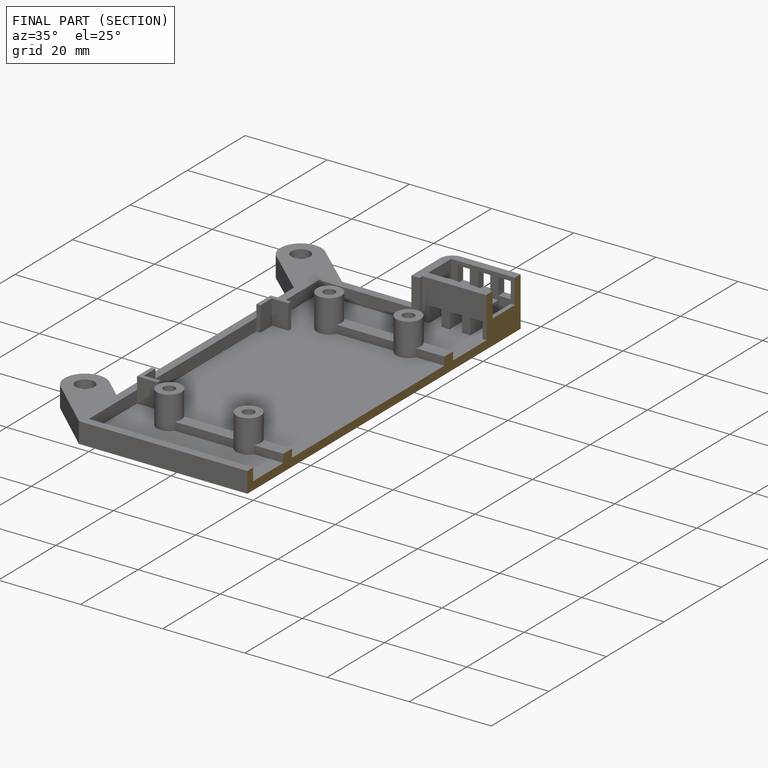
[diagram: finished part — half-section view (interior)]
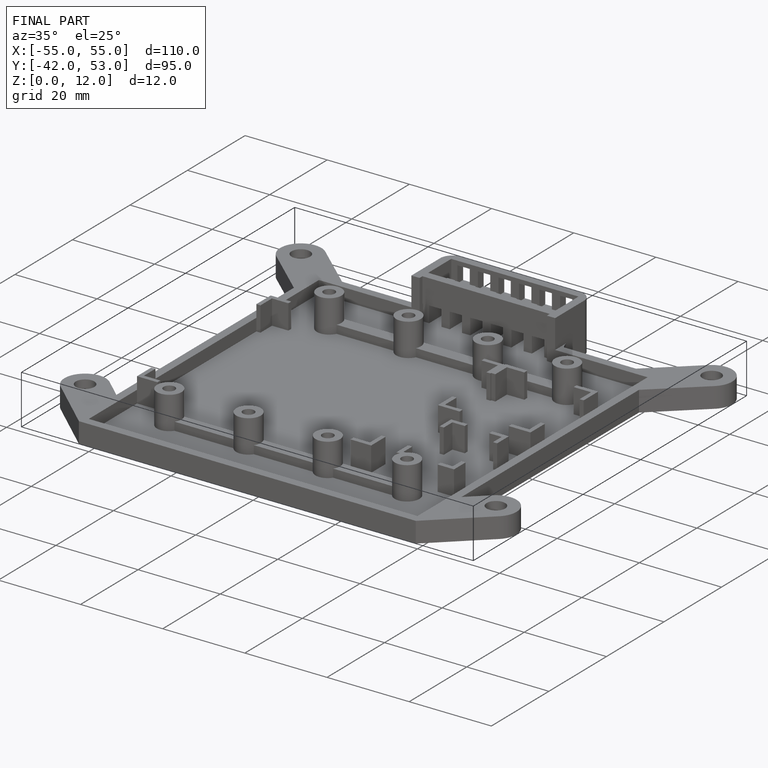
[diagram: finished part — iso view with bounding-box wireframe]
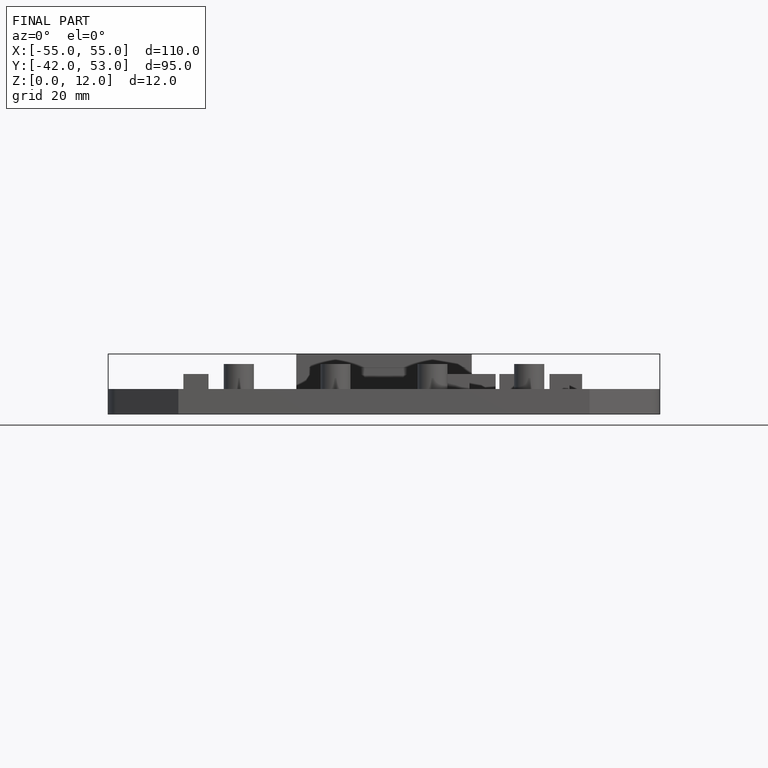
[diagram: finished part — front view with bounding-box wireframe]
